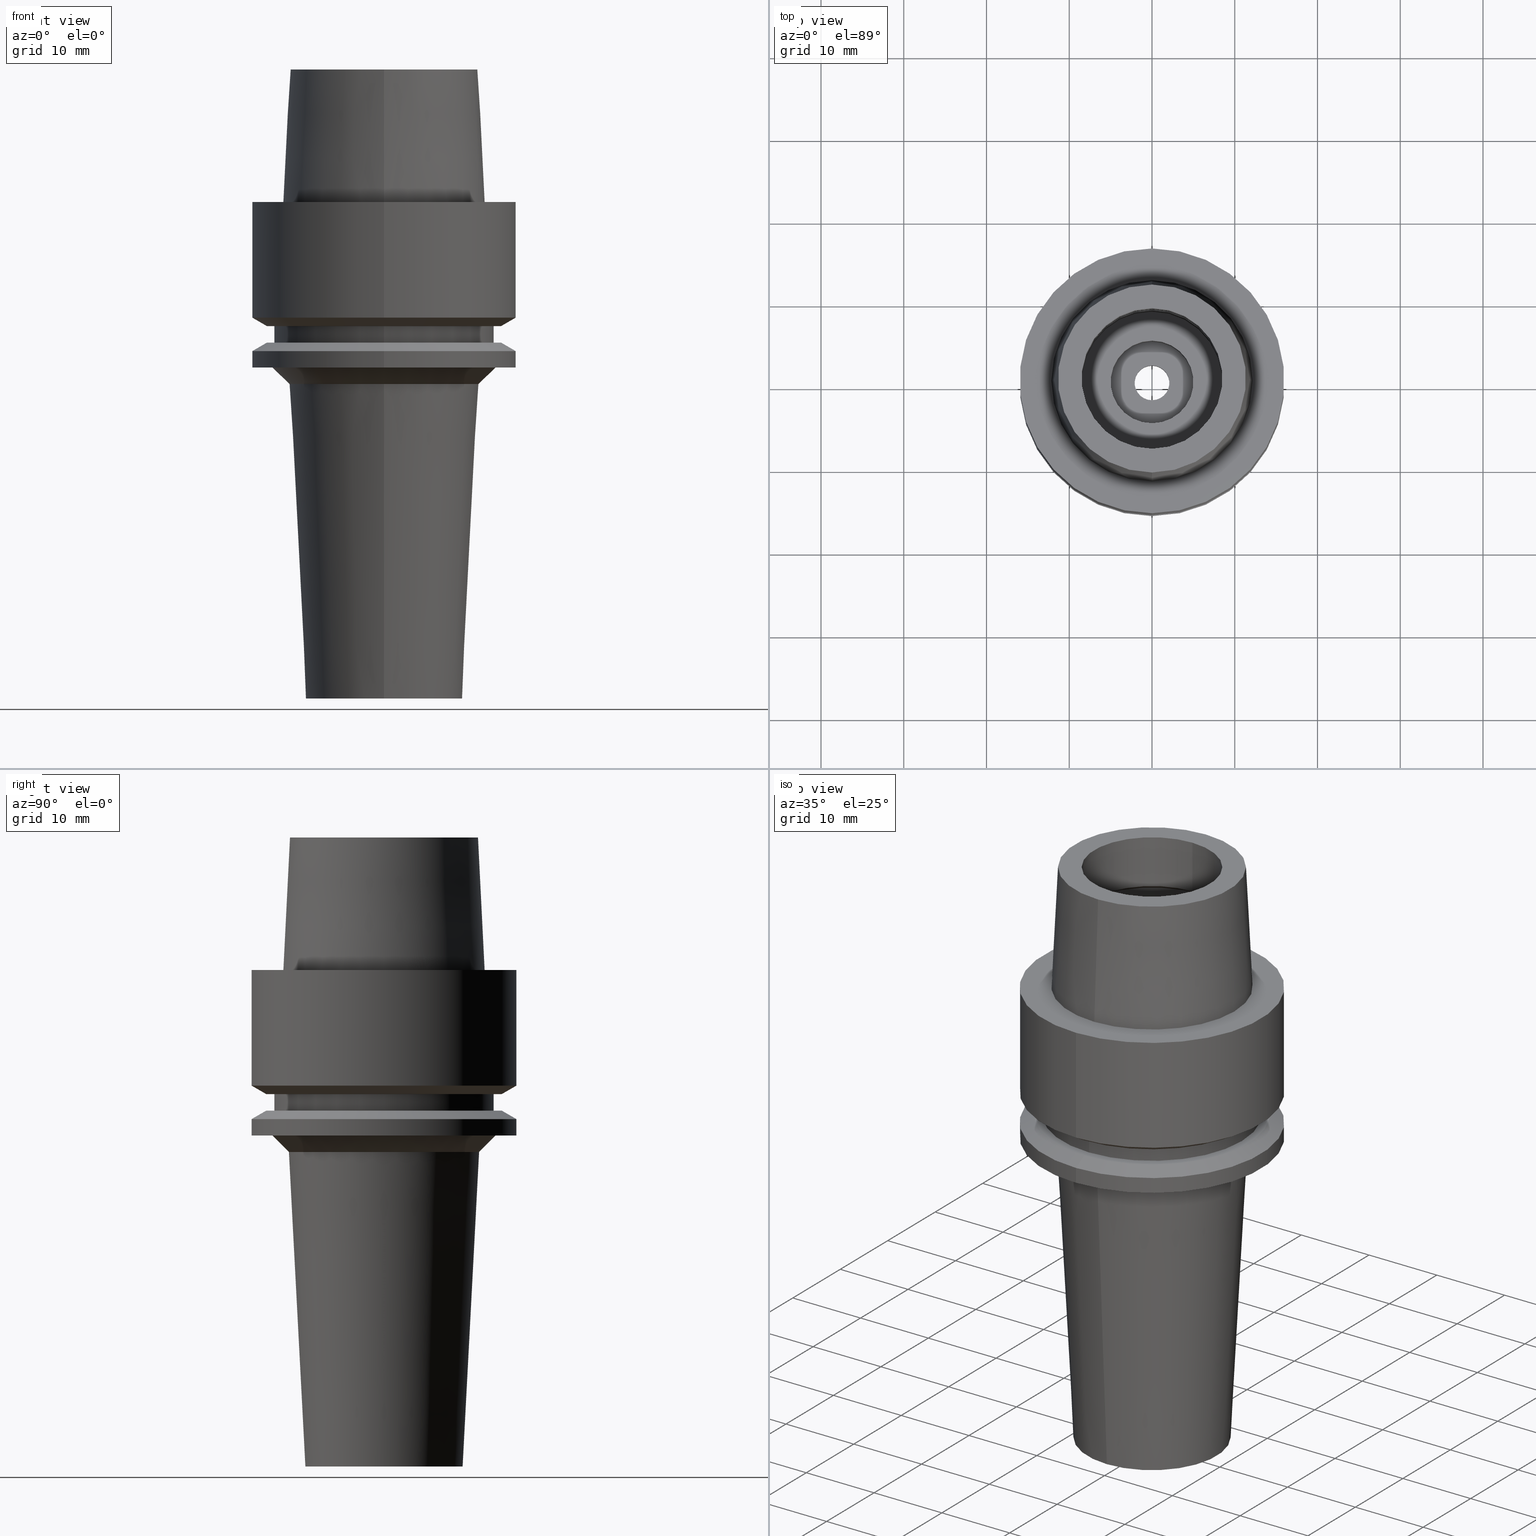
[diagram: canonical four-view strip — front | top / right | iso, engineering-drawing reading convention]
A machine part, canonical four-view strip (front | top / right | iso — engineering-drawing reading convention). The complete STEP part file that produces these views, byte-faithful:
ISO-10303-21;
HEADER;
FILE_DESCRIPTION((''),'2;1');
FILE_NAME('HSK-E32-SRC12S-60','2018-03-05T',('ykawabe'),(''),
'CREO PARAMETRIC BY PTC INC, 2016380','CREO PARAMETRIC BY PTC INC, 2016380','');
FILE_SCHEMA(('AUTOMOTIVE_DESIGN { 1 0 10303 214 1 1 1 1 }'));
ENDSEC;
DATA;
#17=DIRECTION('',(0.E0,4.993752584493E-2,-9.987523434328E-1));
#18=VECTOR('',#17,1.601998744254E1);
#19=CARTESIAN_POINT('',(0.E0,1.136000117044E1,1.6E1));
#20=LINE('',#19,#18);
#21=DRAUGHTING_PRE_DEFINED_CURVE_FONT('continuous');
#22=CURVE_STYLE('',#21,POSITIVE_LENGTH_MEASURE(2.E-2),#4);
#23=PRESENTATION_STYLE_ASSIGNMENT((#22));
#24=STYLED_ITEM('',(#23),#20);
#25=DIRECTION('',(0.E0,-4.993752584493E-2,-9.987523434328E-1));
#26=VECTOR('',#25,1.601998744254E1);
#27=CARTESIAN_POINT('',(0.E0,-1.136000117044E1,1.6E1));
#28=LINE('',#27,#26);
#29=CURVE_STYLE('',#21,POSITIVE_LENGTH_MEASURE(2.E-2),#4);
#30=PRESENTATION_STYLE_ASSIGNMENT((#29));
#31=STYLED_ITEM('',(#30),#28);
#32=CARTESIAN_POINT('',(0.E0,1.322618543079E-14,1.6E1));
#33=DIRECTION('',(0.E0,0.E0,-1.E0));
#34=DIRECTION('',(0.E0,-1.E0,0.E0));
#35=AXIS2_PLACEMENT_3D('',#32,#33,#34);
#37=CURVE_STYLE('',#21,POSITIVE_LENGTH_MEASURE(2.E-2),#4);
#38=PRESENTATION_STYLE_ASSIGNMENT((#37));
#39=STYLED_ITEM('',(#38),#36);
#40=CARTESIAN_POINT('',(0.E0,1.322618543079E-14,1.6E1));
#41=DIRECTION('',(0.E0,0.E0,-1.E0));
#42=DIRECTION('',(0.E0,1.E0,0.E0));
#43=AXIS2_PLACEMENT_3D('',#40,#41,#42);
#45=CURVE_STYLE('',#21,POSITIVE_LENGTH_MEASURE(2.E-2),#4);
#46=PRESENTATION_STYLE_ASSIGNMENT((#45));
#47=STYLED_ITEM('',(#46),#44);
#48=CARTESIAN_POINT('',(0.E0,1.467126865379E-14,1.6E1));
#49=DIRECTION('',(0.E0,0.E0,1.E0));
#50=DIRECTION('',(0.E0,-1.E0,0.E0));
#51=AXIS2_PLACEMENT_3D('',#48,#49,#50);
#53=CURVE_STYLE('',#21,POSITIVE_LENGTH_MEASURE(2.E-2),#4);
#54=PRESENTATION_STYLE_ASSIGNMENT((#53));
#55=STYLED_ITEM('',(#54),#52);
#56=CARTESIAN_POINT('',(0.E0,1.467126865379E-14,1.6E1));
#57=DIRECTION('',(0.E0,0.E0,1.E0));
#58=DIRECTION('',(0.E0,1.E0,0.E0));
#59=AXIS2_PLACEMENT_3D('',#56,#57,#58);
#61=CURVE_STYLE('',#21,POSITIVE_LENGTH_MEASURE(2.E-2),#4);
#62=PRESENTATION_STYLE_ASSIGNMENT((#61));
#63=STYLED_ITEM('',(#62),#60);
#64=DIRECTION('',(0.E0,0.E0,1.E0));
#65=VECTOR('',#64,6.502649730810E0);
#66=CARTESIAN_POINT('',(0.E0,8.5E0,9.497350269190E0));
#67=LINE('',#66,#65);
#68=CURVE_STYLE('',#21,POSITIVE_LENGTH_MEASURE(2.E-2),#4);
#69=PRESENTATION_STYLE_ASSIGNMENT((#68));
#70=STYLED_ITEM('',(#69),#67);
#71=DIRECTION('',(0.E0,0.E0,1.E0));
#72=VECTOR('',#71,6.502649730810E0);
#73=CARTESIAN_POINT('',(0.E0,-8.5E0,9.497350269190E0));
#74=LINE('',#73,#72);
#75=CURVE_STYLE('',#21,POSITIVE_LENGTH_MEASURE(2.E-2),#4);
#76=PRESENTATION_STYLE_ASSIGNMENT((#75));
#77=STYLED_ITEM('',(#76),#74);
#78=CARTESIAN_POINT('',(0.E0,1.334769106330E-14,8.486987298108E0));
#79=DIRECTION('',(0.E0,0.E0,1.E0));
#80=DIRECTION('',(0.E0,1.E0,0.E0));
#81=AXIS2_PLACEMENT_3D('',#78,#79,#80);
#83=CURVE_STYLE('',#21,POSITIVE_LENGTH_MEASURE(2.E-2),#4);
#84=PRESENTATION_STYLE_ASSIGNMENT((#83));
#85=STYLED_ITEM('',(#84),#82);
#86=DIRECTION('',(0.E0,8.660254037844E-1,5.E-1));
#87=VECTOR('',#86,2.020725942164E0);
#88=CARTESIAN_POINT('',(0.E0,-1.025E1,8.486987298108E0));
#89=LINE('',#88,#87);
#90=CURVE_STYLE('',#21,POSITIVE_LENGTH_MEASURE(2.E-2),#4);
#91=PRESENTATION_STYLE_ASSIGNMENT((#90));
#92=STYLED_ITEM('',(#91),#89);
#93=CARTESIAN_POINT('',(0.E0,1.334769106330E-14,9.497350269190E0));
#94=DIRECTION('',(0.E0,0.E0,-1.E0));
#95=DIRECTION('',(0.E0,-1.E0,0.E0));
#96=AXIS2_PLACEMENT_3D('',#93,#94,#95);
#98=CURVE_STYLE('',#21,POSITIVE_LENGTH_MEASURE(2.E-2),#4);
#99=PRESENTATION_STYLE_ASSIGNMENT((#98));
#100=STYLED_ITEM('',(#99),#97);
#101=DIRECTION('',(0.E0,-8.660254037844E-1,5.E-1));
#102=VECTOR('',#101,2.020725942164E0);
#103=CARTESIAN_POINT('',(0.E0,1.025E1,8.486987298108E0));
#104=LINE('',#103,#102);
#105=CURVE_STYLE('',#21,POSITIVE_LENGTH_MEASURE(2.E-2),#4);
#106=PRESENTATION_STYLE_ASSIGNMENT((#105));
#107=STYLED_ITEM('',(#106),#104);
#108=CARTESIAN_POINT('',(0.E0,1.334769106330E-14,9.497350269190E0));
#109=DIRECTION('',(0.E0,0.E0,-1.E0));
#110=DIRECTION('',(0.E0,1.E0,0.E0));
#111=AXIS2_PLACEMENT_3D('',#108,#109,#110);
#113=CURVE_STYLE('',#21,POSITIVE_LENGTH_MEASURE(2.E-2),#4);
#114=PRESENTATION_STYLE_ASSIGNMENT((#113));
#115=STYLED_ITEM('',(#114),#112);
#116=CARTESIAN_POINT('',(0.E0,1.334769106330E-14,8.486987298108E0));
#117=DIRECTION('',(0.E0,0.E0,1.E0));
#118=DIRECTION('',(0.E0,-1.E0,0.E0));
#119=AXIS2_PLACEMENT_3D('',#116,#117,#118);
#121=CURVE_STYLE('',#21,POSITIVE_LENGTH_MEASURE(2.E-2),#4);
#122=PRESENTATION_STYLE_ASSIGNMENT((#121));
#123=STYLED_ITEM('',(#122),#120);
#124=DIRECTION('',(0.E0,0.E0,1.E0));
#125=VECTOR('',#124,5.129987298108E0);
#126=CARTESIAN_POINT('',(0.E0,1.025E1,3.357E0));
#127=LINE('',#126,#125);
#128=CURVE_STYLE('',#21,POSITIVE_LENGTH_MEASURE(2.E-2),#4);
#129=PRESENTATION_STYLE_ASSIGNMENT((#128));
#130=STYLED_ITEM('',(#129),#127);
#131=DIRECTION('',(0.E0,0.E0,1.E0));
#132=VECTOR('',#131,5.129987298108E0);
#133=CARTESIAN_POINT('',(0.E0,-1.025E1,3.357E0));
#134=LINE('',#133,#132);
#135=CURVE_STYLE('',#21,POSITIVE_LENGTH_MEASURE(2.E-2),#4);
#136=PRESENTATION_STYLE_ASSIGNMENT((#135));
#137=STYLED_ITEM('',(#136),#134);
#138=CARTESIAN_POINT('',(0.E0,1.265758192195E-14,4.981086116927E-2));
#139=DIRECTION('',(0.E0,0.E0,1.E0));
#140=DIRECTION('',(0.E0,1.E0,0.E0));
#141=AXIS2_PLACEMENT_3D('',#138,#139,#140);
#143=CURVE_STYLE('',#21,POSITIVE_LENGTH_MEASURE(2.E-2),#4);
#144=PRESENTATION_STYLE_ASSIGNMENT((#143));
#145=STYLED_ITEM('',(#144),#142);
#146=CARTESIAN_POINT('',(0.E0,-6.25E0,3.357E0));
#147=DIRECTION('',(-1.E0,0.E0,0.E0));
#148=DIRECTION('',(0.E0,-5.625E-1,-8.267972847077E-1));
#149=AXIS2_PLACEMENT_3D('',#146,#147,#148);
#151=CURVE_STYLE('',#21,POSITIVE_LENGTH_MEASURE(2.E-2),#4);
#152=PRESENTATION_STYLE_ASSIGNMENT((#151));
#153=STYLED_ITEM('',(#152),#150);
#154=CARTESIAN_POINT('',(0.E0,1.265758192195E-14,3.357E0));
#155=DIRECTION('',(0.E0,0.E0,-1.E0));
#156=DIRECTION('',(0.E0,-1.E0,0.E0));
#157=AXIS2_PLACEMENT_3D('',#154,#155,#156);
#159=CURVE_STYLE('',#21,POSITIVE_LENGTH_MEASURE(2.E-2),#4);
#160=PRESENTATION_STYLE_ASSIGNMENT((#159));
#161=STYLED_ITEM('',(#160),#158);
#162=CARTESIAN_POINT('',(0.E0,6.25E0,3.357E0));
#163=DIRECTION('',(1.E0,0.E0,0.E0));
#164=DIRECTION('',(0.E0,5.625E-1,-8.267972847077E-1));
#165=AXIS2_PLACEMENT_3D('',#162,#163,#164);
#167=CURVE_STYLE('',#21,POSITIVE_LENGTH_MEASURE(2.E-2),#4);
#168=PRESENTATION_STYLE_ASSIGNMENT((#167));
#169=STYLED_ITEM('',(#168),#166);
#170=CARTESIAN_POINT('',(0.E0,1.265758192195E-14,3.357E0));
#171=DIRECTION('',(0.E0,0.E0,-1.E0));
#172=DIRECTION('',(0.E0,1.E0,0.E0));
#173=AXIS2_PLACEMENT_3D('',#170,#171,#172);
#175=CURVE_STYLE('',#21,POSITIVE_LENGTH_MEASURE(2.E-2),#4);
#176=PRESENTATION_STYLE_ASSIGNMENT((#175));
#177=STYLED_ITEM('',(#176),#174);
#178=CARTESIAN_POINT('',(0.E0,1.265758192195E-14,4.981086116927E-2));
#179=DIRECTION('',(0.E0,0.E0,1.E0));
#180=DIRECTION('',(0.E0,-1.E0,0.E0));
#181=AXIS2_PLACEMENT_3D('',#178,#179,#180);
#183=CURVE_STYLE('',#21,POSITIVE_LENGTH_MEASURE(2.E-2),#4);
#184=PRESENTATION_STYLE_ASSIGNMENT((#183));
#185=STYLED_ITEM('',(#184),#182);
#186=DIRECTION('',(0.E0,1.426481532503E-13,1.E0));
#187=VECTOR('',#186,4.981086116925E-2);
#188=CARTESIAN_POINT('',(0.E0,8.5E0,3.552713678801E-14));
#189=LINE('',#188,#187);
#190=CURVE_STYLE('',#21,POSITIVE_LENGTH_MEASURE(2.E-2),#4);
#191=PRESENTATION_STYLE_ASSIGNMENT((#190));
#192=STYLED_ITEM('',(#191),#189);
#193=CARTESIAN_POINT('',(0.E0,1.467126865379E-14,3.907985046681E-14));
#194=DIRECTION('',(0.E0,0.E0,1.E0));
#195=DIRECTION('',(0.E0,-1.E0,0.E0));
#196=AXIS2_PLACEMENT_3D('',#193,#194,#195);
#198=CURVE_STYLE('',#21,POSITIVE_LENGTH_MEASURE(2.E-2),#4);
#199=PRESENTATION_STYLE_ASSIGNMENT((#198));
#200=STYLED_ITEM('',(#199),#197);
#201=DIRECTION('',(0.E0,-1.426481532503E-13,1.E0));
#202=VECTOR('',#201,4.981086116925E-2);
#203=CARTESIAN_POINT('',(0.E0,-8.5E0,3.552713678801E-14));
#204=LINE('',#203,#202);
#205=CURVE_STYLE('',#21,POSITIVE_LENGTH_MEASURE(2.E-2),#4);
#206=PRESENTATION_STYLE_ASSIGNMENT((#205));
#207=STYLED_ITEM('',(#206),#204);
#208=DIRECTION('',(0.E0,0.E0,1.E0));
#209=VECTOR('',#208,7.95E0);
#210=CARTESIAN_POINT('',(0.E0,-8.5E0,-7.95E0));
#211=LINE('',#210,#209);
#212=CURVE_STYLE('',#21,POSITIVE_LENGTH_MEASURE(2.E-2),#4);
#213=PRESENTATION_STYLE_ASSIGNMENT((#212));
#214=STYLED_ITEM('',(#213),#211);
#215=CARTESIAN_POINT('',(0.E0,1.467126865379E-14,3.907985046681E-14));
#216=DIRECTION('',(0.E0,0.E0,-1.E0));
#217=DIRECTION('',(0.E0,-1.E0,0.E0));
#218=AXIS2_PLACEMENT_3D('',#215,#216,#217);
#220=CURVE_STYLE('',#21,POSITIVE_LENGTH_MEASURE(2.E-2),#4);
#221=PRESENTATION_STYLE_ASSIGNMENT((#220));
#222=STYLED_ITEM('',(#221),#219);
#223=DIRECTION('',(0.E0,0.E0,1.E0));
#224=VECTOR('',#223,7.95E0);
#225=CARTESIAN_POINT('',(0.E0,8.5E0,-7.95E0));
#226=LINE('',#225,#224);
#227=CURVE_STYLE('',#21,POSITIVE_LENGTH_MEASURE(2.E-2),#4);
#228=PRESENTATION_STYLE_ASSIGNMENT((#227));
#229=STYLED_ITEM('',(#228),#226);
#230=CARTESIAN_POINT('',(0.E0,1.467126865379E-14,-7.95E0));
#231=DIRECTION('',(0.E0,0.E0,-1.E0));
#232=DIRECTION('',(0.E0,-1.E0,0.E0));
#233=AXIS2_PLACEMENT_3D('',#230,#231,#232);
#235=CURVE_STYLE('',#21,POSITIVE_LENGTH_MEASURE(2.E-2),#4);
#236=PRESENTATION_STYLE_ASSIGNMENT((#235));
#237=STYLED_ITEM('',(#236),#234);
#238=CARTESIAN_POINT('',(0.E0,1.467126865379E-14,-7.95E0));
#239=DIRECTION('',(0.E0,0.E0,-1.E0));
#240=DIRECTION('',(0.E0,1.E0,0.E0));
#241=AXIS2_PLACEMENT_3D('',#238,#239,#240);
#243=CURVE_STYLE('',#21,POSITIVE_LENGTH_MEASURE(2.E-2),#4);
#244=PRESENTATION_STYLE_ASSIGNMENT((#243));
#245=STYLED_ITEM('',(#244),#242);
#246=CARTESIAN_POINT('',(0.E0,1.467126865379E-14,-7.95E0));
#247=DIRECTION('',(0.E0,0.E0,1.E0));
#248=DIRECTION('',(0.E0,-1.E0,0.E0));
#249=AXIS2_PLACEMENT_3D('',#246,#247,#248);
#251=CURVE_STYLE('',#21,POSITIVE_LENGTH_MEASURE(2.E-2),#4);
#252=PRESENTATION_STYLE_ASSIGNMENT((#251));
#253=STYLED_ITEM('',(#252),#250);
#254=CARTESIAN_POINT('',(0.E0,1.467126865379E-14,-7.95E0));
#255=DIRECTION('',(0.E0,0.E0,1.E0));
#256=DIRECTION('',(0.E0,1.E0,0.E0));
#257=AXIS2_PLACEMENT_3D('',#254,#255,#256);
#259=CURVE_STYLE('',#21,POSITIVE_LENGTH_MEASURE(2.E-2),#4);
#260=PRESENTATION_STYLE_ASSIGNMENT((#259));
#261=STYLED_ITEM('',(#260),#258);
#262=DIRECTION('',(0.E0,0.E0,1.E0));
#263=VECTOR('',#262,6.E0);
#264=CARTESIAN_POINT('',(0.E0,5.E0,-1.395E1));
#265=LINE('',#264,#263);
#266=CURVE_STYLE('',#21,POSITIVE_LENGTH_MEASURE(2.E-2),#4);
#267=PRESENTATION_STYLE_ASSIGNMENT((#266));
#268=STYLED_ITEM('',(#267),#265);
#269=DIRECTION('',(0.E0,0.E0,1.E0));
#270=VECTOR('',#269,6.E0);
#271=CARTESIAN_POINT('',(0.E0,-5.E0,-1.395E1));
#272=LINE('',#271,#270);
#273=CURVE_STYLE('',#21,POSITIVE_LENGTH_MEASURE(2.E-2),#4);
#274=PRESENTATION_STYLE_ASSIGNMENT((#273));
#275=STYLED_ITEM('',(#274),#272);
#276=CARTESIAN_POINT('',(0.E0,1.467126865379E-14,-1.395E1));
#277=DIRECTION('',(0.E0,0.E0,-1.E0));
#278=DIRECTION('',(0.E0,-1.E0,0.E0));
#279=AXIS2_PLACEMENT_3D('',#276,#277,#278);
#281=CURVE_STYLE('',#21,POSITIVE_LENGTH_MEASURE(2.E-2),#4);
#282=PRESENTATION_STYLE_ASSIGNMENT((#281));
#283=STYLED_ITEM('',(#282),#280);
#284=CARTESIAN_POINT('',(0.E0,1.467126865379E-14,-1.395E1));
#285=DIRECTION('',(0.E0,0.E0,-1.E0));
#286=DIRECTION('',(0.E0,1.E0,0.E0));
#287=AXIS2_PLACEMENT_3D('',#284,#285,#286);
#289=CURVE_STYLE('',#21,POSITIVE_LENGTH_MEASURE(2.E-2),#4);
#290=PRESENTATION_STYLE_ASSIGNMENT((#289));
#291=STYLED_ITEM('',(#290),#288);
#292=CARTESIAN_POINT('',(0.E0,1.467126865379E-14,-1.395E1));
#293=DIRECTION('',(0.E0,0.E0,1.E0));
#294=DIRECTION('',(0.E0,-1.E0,0.E0));
#295=AXIS2_PLACEMENT_3D('',#292,#293,#294);
#297=CURVE_STYLE('',#21,POSITIVE_LENGTH_MEASURE(2.E-2),#4);
#298=PRESENTATION_STYLE_ASSIGNMENT((#297));
#299=STYLED_ITEM('',(#298),#296);
#300=CARTESIAN_POINT('',(0.E0,1.467126865379E-14,-1.395E1));
#301=DIRECTION('',(0.E0,0.E0,1.E0));
#302=DIRECTION('',(0.E0,1.E0,0.E0));
#303=AXIS2_PLACEMENT_3D('',#300,#301,#302);
#305=CURVE_STYLE('',#21,POSITIVE_LENGTH_MEASURE(2.E-2),#4);
#306=PRESENTATION_STYLE_ASSIGNMENT((#305));
#307=STYLED_ITEM('',(#306),#304);
#308=DIRECTION('',(0.E0,0.E0,1.E0));
#309=VECTOR('',#308,3.05E0);
#310=CARTESIAN_POINT('',(0.E0,2.1E0,-1.7E1));
#311=LINE('',#310,#309);
#312=CURVE_STYLE('',#21,POSITIVE_LENGTH_MEASURE(2.E-2),#4);
#313=PRESENTATION_STYLE_ASSIGNMENT((#312));
#314=STYLED_ITEM('',(#313),#311);
#315=DIRECTION('',(0.E0,0.E0,1.E0));
#316=VECTOR('',#315,3.05E0);
#317=CARTESIAN_POINT('',(0.E0,-2.1E0,-1.7E1));
#318=LINE('',#317,#316);
#319=CURVE_STYLE('',#21,POSITIVE_LENGTH_MEASURE(2.E-2),#4);
#320=PRESENTATION_STYLE_ASSIGNMENT((#319));
#321=STYLED_ITEM('',(#320),#318);
#322=CARTESIAN_POINT('',(0.E0,1.467126865379E-14,-1.7E1));
#323=DIRECTION('',(0.E0,0.E0,1.E0));
#324=DIRECTION('',(0.E0,-1.E0,0.E0));
#325=AXIS2_PLACEMENT_3D('',#322,#323,#324);
#327=CURVE_STYLE('',#21,POSITIVE_LENGTH_MEASURE(2.E-2),#4);
#328=PRESENTATION_STYLE_ASSIGNMENT((#327));
#329=STYLED_ITEM('',(#328),#326);
#330=CARTESIAN_POINT('',(0.E0,1.467126865379E-14,-1.7E1));
#331=DIRECTION('',(0.E0,0.E0,1.E0));
#332=DIRECTION('',(0.E0,1.E0,0.E0));
#333=AXIS2_PLACEMENT_3D('',#330,#331,#332);
#335=CURVE_STYLE('',#21,POSITIVE_LENGTH_MEASURE(2.E-2),#4);
#336=PRESENTATION_STYLE_ASSIGNMENT((#335));
#337=STYLED_ITEM('',(#336),#334);
#338=CARTESIAN_POINT('',(0.E0,1.467126865379E-14,-1.7E1));
#339=DIRECTION('',(0.E0,0.E0,-1.E0));
#340=DIRECTION('',(0.E0,-1.E0,0.E0));
#341=AXIS2_PLACEMENT_3D('',#338,#339,#340);
#343=CURVE_STYLE('',#21,POSITIVE_LENGTH_MEASURE(2.E-2),#4);
#344=PRESENTATION_STYLE_ASSIGNMENT((#343));
#345=STYLED_ITEM('',(#344),#342);
#346=CARTESIAN_POINT('',(0.E0,1.467126865379E-14,-1.7E1));
#347=DIRECTION('',(0.E0,0.E0,-1.E0));
#348=DIRECTION('',(0.E0,1.E0,0.E0));
#349=AXIS2_PLACEMENT_3D('',#346,#347,#348);
#351=CURVE_STYLE('',#21,POSITIVE_LENGTH_MEASURE(2.E-2),#4);
#352=PRESENTATION_STYLE_ASSIGNMENT((#351));
#353=STYLED_ITEM('',(#352),#350);
#354=DIRECTION('',(0.E0,0.E0,1.E0));
#355=VECTOR('',#354,7.2E0);
#356=CARTESIAN_POINT('',(0.E0,6.5E0,-2.42E1));
#357=LINE('',#356,#355);
#358=CURVE_STYLE('',#21,POSITIVE_LENGTH_MEASURE(2.E-2),#4);
#359=PRESENTATION_STYLE_ASSIGNMENT((#358));
#360=STYLED_ITEM('',(#359),#357);
#361=DIRECTION('',(0.E0,0.E0,1.E0));
#362=VECTOR('',#361,7.2E0);
#363=CARTESIAN_POINT('',(0.E0,-6.5E0,-2.42E1));
#364=LINE('',#363,#362);
#365=CURVE_STYLE('',#21,POSITIVE_LENGTH_MEASURE(2.E-2),#4);
#366=PRESENTATION_STYLE_ASSIGNMENT((#365));
#367=STYLED_ITEM('',(#366),#364);
#368=CARTESIAN_POINT('',(0.E0,1.467126865379E-14,-2.42E1));
#369=DIRECTION('',(0.E0,0.E0,-1.E0));
#370=DIRECTION('',(0.E0,-1.E0,0.E0));
#371=AXIS2_PLACEMENT_3D('',#368,#369,#370);
#373=CURVE_STYLE('',#21,POSITIVE_LENGTH_MEASURE(2.E-2),#4);
#374=PRESENTATION_STYLE_ASSIGNMENT((#373));
#375=STYLED_ITEM('',(#374),#372);
#376=CARTESIAN_POINT('',(0.E0,1.467126865379E-14,-2.42E1));
#377=DIRECTION('',(0.E0,0.E0,-1.E0));
#378=DIRECTION('',(0.E0,1.E0,0.E0));
#379=AXIS2_PLACEMENT_3D('',#376,#377,#378);
#381=CURVE_STYLE('',#21,POSITIVE_LENGTH_MEASURE(2.E-2),#4);
#382=PRESENTATION_STYLE_ASSIGNMENT((#381));
#383=STYLED_ITEM('',(#382),#380);
#384=CARTESIAN_POINT('',(0.E0,1.467126865379E-14,-2.42E1));
#385=DIRECTION('',(0.E0,0.E0,1.E0));
#386=DIRECTION('',(0.E0,-1.E0,0.E0));
#387=AXIS2_PLACEMENT_3D('',#384,#385,#386);
#389=CURVE_STYLE('',#21,POSITIVE_LENGTH_MEASURE(2.E-2),#4);
#390=PRESENTATION_STYLE_ASSIGNMENT((#389));
#391=STYLED_ITEM('',(#390),#388);
#392=CARTESIAN_POINT('',(0.E0,1.467126865379E-14,-2.42E1));
#393=DIRECTION('',(0.E0,0.E0,1.E0));
#394=DIRECTION('',(0.E0,1.E0,0.E0));
#395=AXIS2_PLACEMENT_3D('',#392,#393,#394);
#397=CURVE_STYLE('',#21,POSITIVE_LENGTH_MEASURE(2.E-2),#4);
#398=PRESENTATION_STYLE_ASSIGNMENT((#397));
#399=STYLED_ITEM('',(#398),#396);
#400=DIRECTION('',(0.E0,0.E0,1.E0));
#401=VECTOR('',#400,3.58E1);
#402=CARTESIAN_POINT('',(0.E0,6.E0,-6.E1));
#403=LINE('',#402,#401);
#404=CURVE_STYLE('',#21,POSITIVE_LENGTH_MEASURE(2.E-2),#4);
#405=PRESENTATION_STYLE_ASSIGNMENT((#404));
#406=STYLED_ITEM('',(#405),#403);
#407=DIRECTION('',(0.E0,0.E0,1.E0));
#408=VECTOR('',#407,3.58E1);
#409=CARTESIAN_POINT('',(0.E0,-6.E0,-6.E1));
#410=LINE('',#409,#408);
#411=CURVE_STYLE('',#21,POSITIVE_LENGTH_MEASURE(2.E-2),#4);
#412=PRESENTATION_STYLE_ASSIGNMENT((#411));
#413=STYLED_ITEM('',(#412),#410);
#414=CARTESIAN_POINT('',(0.E0,0.E0,-6.E1));
#415=DIRECTION('',(0.E0,0.E0,1.E0));
#416=DIRECTION('',(0.E0,-1.E0,0.E0));
#417=AXIS2_PLACEMENT_3D('',#414,#415,#416);
#419=CURVE_STYLE('',#21,POSITIVE_LENGTH_MEASURE(2.E-2),#4);
#420=PRESENTATION_STYLE_ASSIGNMENT((#419));
#421=STYLED_ITEM('',(#420),#418);
#422=CARTESIAN_POINT('',(0.E0,0.E0,-6.E1));
#423=DIRECTION('',(0.E0,0.E0,1.E0));
#424=DIRECTION('',(0.E0,1.E0,0.E0));
#425=AXIS2_PLACEMENT_3D('',#422,#423,#424);
#427=CURVE_STYLE('',#21,POSITIVE_LENGTH_MEASURE(2.E-2),#4);
#428=PRESENTATION_STYLE_ASSIGNMENT((#427));
#429=STYLED_ITEM('',(#428),#426);
#430=CARTESIAN_POINT('',(0.E0,1.467126865379E-14,-6.E1));
#431=DIRECTION('',(0.E0,0.E0,-1.E0));
#432=DIRECTION('',(0.E0,-1.E0,0.E0));
#433=AXIS2_PLACEMENT_3D('',#430,#431,#432);
#435=CURVE_STYLE('',#21,POSITIVE_LENGTH_MEASURE(2.E-2),#4);
#436=PRESENTATION_STYLE_ASSIGNMENT((#435));
#437=STYLED_ITEM('',(#436),#434);
#438=CARTESIAN_POINT('',(0.E0,1.467126865379E-14,-6.E1));
#439=DIRECTION('',(0.E0,0.E0,-1.E0));
#440=DIRECTION('',(0.E0,1.E0,0.E0));
#441=AXIS2_PLACEMENT_3D('',#438,#439,#440);
#443=CURVE_STYLE('',#21,POSITIVE_LENGTH_MEASURE(2.E-2),#4);
#444=PRESENTATION_STYLE_ASSIGNMENT((#443));
#445=STYLED_ITEM('',(#444),#442);
#446=DIRECTION('',(0.E0,-5.233595624299E-2,-9.986295347546E-1));
#447=VECTOR('',#446,3.805214914792E1);
#448=CARTESIAN_POINT('',(0.E0,1.149149561276E1,-2.2E1));
#449=LINE('',#448,#447);
#450=CURVE_STYLE('',#21,POSITIVE_LENGTH_MEASURE(2.E-2),#4);
#451=PRESENTATION_STYLE_ASSIGNMENT((#450));
#452=STYLED_ITEM('',(#451),#449);
#453=CARTESIAN_POINT('',(0.E0,0.E0,-2.2E1));
#454=DIRECTION('',(0.E0,0.E0,1.E0));
#455=DIRECTION('',(0.E0,-1.E0,0.E0));
#456=AXIS2_PLACEMENT_3D('',#453,#454,#455);
#458=CURVE_STYLE('',#21,POSITIVE_LENGTH_MEASURE(2.E-2),#4);
#459=PRESENTATION_STYLE_ASSIGNMENT((#458));
#460=STYLED_ITEM('',(#459),#457);
#461=DIRECTION('',(0.E0,5.233595624299E-2,-9.986295347546E-1));
#462=VECTOR('',#461,3.805214914792E1);
#463=CARTESIAN_POINT('',(0.E0,-1.149149561276E1,-2.2E1));
#464=LINE('',#463,#462);
#465=CURVE_STYLE('',#21,POSITIVE_LENGTH_MEASURE(2.E-2),#4);
#466=PRESENTATION_STYLE_ASSIGNMENT((#465));
#467=STYLED_ITEM('',(#466),#464);
#468=DIRECTION('',(0.E0,7.071067811867E-1,-7.071067811864E-1));
#469=VECTOR('',#468,2.828427124747E0);
#470=CARTESIAN_POINT('',(0.E0,-1.349149561276E1,-2.E1));
#471=LINE('',#470,#469);
#472=CURVE_STYLE('',#21,POSITIVE_LENGTH_MEASURE(2.E-2),#4);
#473=PRESENTATION_STYLE_ASSIGNMENT((#472));
#474=STYLED_ITEM('',(#473),#471);
#475=CARTESIAN_POINT('',(0.E0,0.E0,-2.2E1));
#476=DIRECTION('',(0.E0,0.E0,-1.E0));
#477=DIRECTION('',(0.E0,-1.E0,0.E0));
#478=AXIS2_PLACEMENT_3D('',#475,#476,#477);
#480=CURVE_STYLE('',#21,POSITIVE_LENGTH_MEASURE(2.E-2),#4);
#481=PRESENTATION_STYLE_ASSIGNMENT((#480));
#482=STYLED_ITEM('',(#481),#479);
#483=DIRECTION('',(0.E0,-7.071067811867E-1,-7.071067811864E-1));
#484=VECTOR('',#483,2.828427124747E0);
#485=CARTESIAN_POINT('',(0.E0,1.349149561276E1,-2.E1));
#486=LINE('',#485,#484);
#487=CURVE_STYLE('',#21,POSITIVE_LENGTH_MEASURE(2.E-2),#4);
#488=PRESENTATION_STYLE_ASSIGNMENT((#487));
#489=STYLED_ITEM('',(#488),#486);
#490=CARTESIAN_POINT('',(0.E0,1.467126865379E-14,-2.E1));
#491=DIRECTION('',(0.E0,0.E0,1.E0));
#492=DIRECTION('',(0.E0,-1.E0,0.E0));
#493=AXIS2_PLACEMENT_3D('',#490,#491,#492);
#495=CURVE_STYLE('',#21,POSITIVE_LENGTH_MEASURE(2.E-2),#4);
#496=PRESENTATION_STYLE_ASSIGNMENT((#495));
#497=STYLED_ITEM('',(#496),#494);
#498=CARTESIAN_POINT('',(0.E0,1.467126865379E-14,-2.E1));
#499=DIRECTION('',(0.E0,0.E0,1.E0));
#500=DIRECTION('',(0.E0,1.E0,0.E0));
#501=AXIS2_PLACEMENT_3D('',#498,#499,#500);
#503=CURVE_STYLE('',#21,POSITIVE_LENGTH_MEASURE(2.E-2),#4);
#504=PRESENTATION_STYLE_ASSIGNMENT((#503));
#505=STYLED_ITEM('',(#504),#502);
#506=CARTESIAN_POINT('',(0.E0,0.E0,-2.E1));
#507=DIRECTION('',(0.E0,0.E0,-1.E0));
#508=DIRECTION('',(0.E0,-1.E0,0.E0));
#509=AXIS2_PLACEMENT_3D('',#506,#507,#508);
#511=CURVE_STYLE('',#21,POSITIVE_LENGTH_MEASURE(2.E-2),#4);
#512=PRESENTATION_STYLE_ASSIGNMENT((#511));
#513=STYLED_ITEM('',(#512),#510);
#514=CARTESIAN_POINT('',(0.E0,0.E0,-2.E1));
#515=DIRECTION('',(0.E0,0.E0,-1.E0));
#516=DIRECTION('',(0.E0,1.E0,0.E0));
#517=AXIS2_PLACEMENT_3D('',#514,#515,#516);
#519=CURVE_STYLE('',#21,POSITIVE_LENGTH_MEASURE(2.E-2),#4);
#520=PRESENTATION_STYLE_ASSIGNMENT((#519));
#521=STYLED_ITEM('',(#520),#518);
#522=DIRECTION('',(0.E0,4.765613321642E-13,-1.E0));
#523=VECTOR('',#522,1.979274057838E0);
#524=CARTESIAN_POINT('',(0.E0,1.6E1,-1.802072594216E1));
#525=LINE('',#524,#523);
#526=CURVE_STYLE('',#21,POSITIVE_LENGTH_MEASURE(2.E-2),#4);
#527=PRESENTATION_STYLE_ASSIGNMENT((#526));
#528=STYLED_ITEM('',(#527),#525);
#529=DIRECTION('',(0.E0,-4.792537690691E-13,-1.E0));
#530=VECTOR('',#529,1.979274057838E0);
#531=CARTESIAN_POINT('',(0.E0,-1.6E1,-1.802072594216E1));
#532=LINE('',#531,#530);
#533=CURVE_STYLE('',#21,POSITIVE_LENGTH_MEASURE(2.E-2),#4);
#534=PRESENTATION_STYLE_ASSIGNMENT((#533));
#535=STYLED_ITEM('',(#534),#532);
#536=DIRECTION('',(0.E0,-8.660254037848E-1,-4.999999999994E-1));
#537=VECTOR('',#536,2.041451884325E0);
#538=CARTESIAN_POINT('',(0.E0,-1.423205080757E1,-1.7E1));
#539=LINE('',#538,#537);
#540=CURVE_STYLE('',#21,POSITIVE_LENGTH_MEASURE(2.E-2),#4);
#541=PRESENTATION_STYLE_ASSIGNMENT((#540));
#542=STYLED_ITEM('',(#541),#539);
#543=CARTESIAN_POINT('',(0.E0,1.010206699503E-14,-1.802072594216E1));
#544=DIRECTION('',(0.E0,0.E0,-1.E0));
#545=DIRECTION('',(0.E0,-1.E0,0.E0));
#546=AXIS2_PLACEMENT_3D('',#543,#544,#545);
#548=CURVE_STYLE('',#21,POSITIVE_LENGTH_MEASURE(2.E-2),#4);
#549=PRESENTATION_STYLE_ASSIGNMENT((#548));
#550=STYLED_ITEM('',(#549),#547);
#551=DIRECTION('',(0.E0,8.660254037848E-1,-4.999999999994E-1));
#552=VECTOR('',#551,2.041451884325E0);
#553=CARTESIAN_POINT('',(0.E0,1.423205080757E1,-1.7E1));
#554=LINE('',#553,#552);
#555=CURVE_STYLE('',#21,POSITIVE_LENGTH_MEASURE(2.E-2),#4);
#556=PRESENTATION_STYLE_ASSIGNMENT((#555));
#557=STYLED_ITEM('',(#556),#554);
#558=CARTESIAN_POINT('',(0.E0,1.010206699503E-14,-1.802072594216E1));
#559=DIRECTION('',(0.E0,0.E0,-1.E0));
#560=DIRECTION('',(0.E0,1.E0,0.E0));
#561=AXIS2_PLACEMENT_3D('',#558,#559,#560);
#563=CURVE_STYLE('',#21,POSITIVE_LENGTH_MEASURE(2.E-2),#4);
#564=PRESENTATION_STYLE_ASSIGNMENT((#563));
#565=STYLED_ITEM('',(#564),#562);
#566=CARTESIAN_POINT('',(0.E0,1.010206699503E-14,-1.7E1));
#567=DIRECTION('',(0.E0,0.E0,-1.E0));
#568=DIRECTION('',(0.E0,-1.E0,0.E0));
#569=AXIS2_PLACEMENT_3D('',#566,#567,#568);
#571=CURVE_STYLE('',#21,POSITIVE_LENGTH_MEASURE(2.E-2),#4);
#572=PRESENTATION_STYLE_ASSIGNMENT((#571));
#573=STYLED_ITEM('',(#572),#570);
#574=CARTESIAN_POINT('',(0.E0,1.010206699503E-14,-1.7E1));
#575=DIRECTION('',(0.E0,0.E0,-1.E0));
#576=DIRECTION('',(0.E0,1.E0,0.E0));
#577=AXIS2_PLACEMENT_3D('',#574,#575,#576);
#579=CURVE_STYLE('',#21,POSITIVE_LENGTH_MEASURE(2.E-2),#4);
#580=PRESENTATION_STYLE_ASSIGNMENT((#579));
#581=STYLED_ITEM('',(#580),#578);
#582=CARTESIAN_POINT('',(0.E0,1.467126865379E-14,-1.7E1));
#583=DIRECTION('',(0.E0,0.E0,1.E0));
#584=DIRECTION('',(0.E0,-1.E0,0.E0));
#585=AXIS2_PLACEMENT_3D('',#582,#583,#584);
#587=CURVE_STYLE('',#21,POSITIVE_LENGTH_MEASURE(2.E-2),#4);
#588=PRESENTATION_STYLE_ASSIGNMENT((#587));
#589=STYLED_ITEM('',(#588),#586);
#590=CARTESIAN_POINT('',(0.E0,1.467126865379E-14,-1.7E1));
#591=DIRECTION('',(0.E0,0.E0,1.E0));
#592=DIRECTION('',(0.E0,1.E0,0.E0));
#593=AXIS2_PLACEMENT_3D('',#590,#591,#592);
#595=CURVE_STYLE('',#21,POSITIVE_LENGTH_MEASURE(2.E-2),#4);
#596=PRESENTATION_STYLE_ASSIGNMENT((#595));
#597=STYLED_ITEM('',(#596),#594);
#598=DIRECTION('',(0.E0,0.E0,-1.E0));
#599=VECTOR('',#598,2.E0);
#600=CARTESIAN_POINT('',(0.E0,1.325E1,-1.5E1));
#601=LINE('',#600,#599);
#602=CURVE_STYLE('',#21,POSITIVE_LENGTH_MEASURE(2.E-2),#4);
#603=PRESENTATION_STYLE_ASSIGNMENT((#602));
#604=STYLED_ITEM('',(#603),#601);
#605=DIRECTION('',(0.E0,0.E0,-1.E0));
#606=VECTOR('',#605,2.E0);
#607=CARTESIAN_POINT('',(0.E0,-1.325E1,-1.5E1));
#608=LINE('',#607,#606);
#609=CURVE_STYLE('',#21,POSITIVE_LENGTH_MEASURE(2.E-2),#4);
#610=PRESENTATION_STYLE_ASSIGNMENT((#609));
#611=STYLED_ITEM('',(#610),#608);
#612=CARTESIAN_POINT('',(0.E0,1.047199923065E-14,-1.5E1));
#613=DIRECTION('',(0.E0,0.E0,1.E0));
#614=DIRECTION('',(0.E0,-1.E0,0.E0));
#615=AXIS2_PLACEMENT_3D('',#612,#613,#614);
#617=CURVE_STYLE('',#21,POSITIVE_LENGTH_MEASURE(2.E-2),#4);
#618=PRESENTATION_STYLE_ASSIGNMENT((#617));
#619=STYLED_ITEM('',(#618),#616);
#620=CARTESIAN_POINT('',(0.E0,1.047199923065E-14,-1.5E1));
#621=DIRECTION('',(0.E0,0.E0,1.E0));
#622=DIRECTION('',(0.E0,1.E0,0.E0));
#623=AXIS2_PLACEMENT_3D('',#620,#621,#622);
#625=CURVE_STYLE('',#21,POSITIVE_LENGTH_MEASURE(2.E-2),#4);
#626=PRESENTATION_STYLE_ASSIGNMENT((#625));
#627=STYLED_ITEM('',(#626),#624);
#628=CARTESIAN_POINT('',(0.E0,1.467126865379E-14,-1.5E1));
#629=DIRECTION('',(0.E0,0.E0,-1.E0));
#630=DIRECTION('',(0.E0,-1.E0,0.E0));
#631=AXIS2_PLACEMENT_3D('',#628,#629,#630);
#633=CURVE_STYLE('',#21,POSITIVE_LENGTH_MEASURE(2.E-2),#4);
#634=PRESENTATION_STYLE_ASSIGNMENT((#633));
#635=STYLED_ITEM('',(#634),#632);
#636=CARTESIAN_POINT('',(0.E0,1.467126865379E-14,-1.5E1));
#637=DIRECTION('',(0.E0,0.E0,-1.E0));
#638=DIRECTION('',(0.E0,1.E0,0.E0));
#639=AXIS2_PLACEMENT_3D('',#636,#637,#638);
#641=CURVE_STYLE('',#21,POSITIVE_LENGTH_MEASURE(2.E-2),#4);
#642=PRESENTATION_STYLE_ASSIGNMENT((#641));
#643=STYLED_ITEM('',(#642),#640);
#644=DIRECTION('',(0.E0,-8.660254037848E-1,-4.999999999994E-1));
#645=VECTOR('',#644,2.041451884325E0);
#646=CARTESIAN_POINT('',(0.E0,1.6E1,-1.397927405784E1));
#647=LINE('',#646,#645);
#648=CURVE_STYLE('',#21,POSITIVE_LENGTH_MEASURE(2.E-2),#4);
#649=PRESENTATION_STYLE_ASSIGNMENT((#648));
#650=STYLED_ITEM('',(#649),#647);
#651=CARTESIAN_POINT('',(0.E0,1.047199923065E-14,-1.397927405784E1));
#652=DIRECTION('',(0.E0,0.E0,1.E0));
#653=DIRECTION('',(0.E0,-1.E0,0.E0));
#654=AXIS2_PLACEMENT_3D('',#651,#652,#653);
#656=CURVE_STYLE('',#21,POSITIVE_LENGTH_MEASURE(2.E-2),#4);
#657=PRESENTATION_STYLE_ASSIGNMENT((#656));
#658=STYLED_ITEM('',(#657),#655);
#659=CARTESIAN_POINT('',(0.E0,1.047199923065E-14,-1.397927405784E1));
#660=DIRECTION('',(0.E0,0.E0,1.E0));
#661=DIRECTION('',(0.E0,1.E0,0.E0));
#662=AXIS2_PLACEMENT_3D('',#659,#660,#661);
#664=CURVE_STYLE('',#21,POSITIVE_LENGTH_MEASURE(2.E-2),#4);
#665=PRESENTATION_STYLE_ASSIGNMENT((#664));
#666=STYLED_ITEM('',(#665),#663);
#667=DIRECTION('',(0.E0,8.660254037848E-1,-4.999999999994E-1));
#668=VECTOR('',#667,2.041451884325E0);
#669=CARTESIAN_POINT('',(0.E0,-1.6E1,-1.397927405784E1));
#670=LINE('',#669,#668);
#671=CURVE_STYLE('',#21,POSITIVE_LENGTH_MEASURE(2.E-2),#4);
#672=PRESENTATION_STYLE_ASSIGNMENT((#671));
#673=STYLED_ITEM('',(#672),#670);
#674=DIRECTION('',(0.E0,6.760163901580E-14,-1.E0));
#675=VECTOR('',#674,1.397927405784E1);
#676=CARTESIAN_POINT('',(0.E0,-1.6E1,2.605323364454E-14));
#677=LINE('',#676,#675);
#678=CURVE_STYLE('',#21,POSITIVE_LENGTH_MEASURE(2.E-2),#4);
#679=PRESENTATION_STYLE_ASSIGNMENT((#678));
#680=STYLED_ITEM('',(#679),#677);
#681=DIRECTION('',(0.E0,-6.798285126589E-14,-1.E0));
#682=VECTOR('',#681,1.397927405784E1);
#683=CARTESIAN_POINT('',(0.E0,1.6E1,2.605323364454E-14));
#684=LINE('',#683,#682);
#685=CURVE_STYLE('',#21,POSITIVE_LENGTH_MEASURE(2.E-2),#4);
#686=PRESENTATION_STYLE_ASSIGNMENT((#685));
#687=STYLED_ITEM('',(#686),#684);
#688=CARTESIAN_POINT('',(0.E0,1.467126865379E-14,4.263256414561E-14));
#689=DIRECTION('',(0.E0,0.E0,-1.E0));
#690=DIRECTION('',(0.E0,-1.E0,0.E0));
#691=AXIS2_PLACEMENT_3D('',#688,#689,#690);
#693=CURVE_STYLE('',#21,POSITIVE_LENGTH_MEASURE(2.E-2),#4);
#694=PRESENTATION_STYLE_ASSIGNMENT((#693));
#695=STYLED_ITEM('',(#694),#692);
#696=CARTESIAN_POINT('',(0.E0,1.467126865379E-14,4.263256414561E-14));
#697=DIRECTION('',(0.E0,0.E0,-1.E0));
#698=DIRECTION('',(0.E0,1.E0,0.E0));
#699=AXIS2_PLACEMENT_3D('',#696,#697,#698);
#701=CURVE_STYLE('',#21,POSITIVE_LENGTH_MEASURE(2.E-2),#4);
#702=PRESENTATION_STYLE_ASSIGNMENT((#701));
#703=STYLED_ITEM('',(#702),#700);
#704=CARTESIAN_POINT('',(0.E0,1.322618543079E-14,1.989519660128E-13));
#705=DIRECTION('',(0.E0,0.E0,1.E0));
#706=DIRECTION('',(0.E0,-1.E0,0.E0));
#707=AXIS2_PLACEMENT_3D('',#704,#705,#706);
#709=CURVE_STYLE('',#21,POSITIVE_LENGTH_MEASURE(2.E-2),#4);
#710=PRESENTATION_STYLE_ASSIGNMENT((#709));
#711=STYLED_ITEM('',(#710),#708);
#712=CARTESIAN_POINT('',(0.E0,1.322618543079E-14,1.989519660128E-13));
#713=DIRECTION('',(0.E0,0.E0,1.E0));
#714=DIRECTION('',(0.E0,1.E0,0.E0));
#715=AXIS2_PLACEMENT_3D('',#712,#713,#714);
#717=CURVE_STYLE('',#21,POSITIVE_LENGTH_MEASURE(2.E-2),#4);
#718=PRESENTATION_STYLE_ASSIGNMENT((#717));
#719=STYLED_ITEM('',(#718),#716);
#720=CARTESIAN_POINT('',(0.E0,1.136000117044E1,1.6E1));
#721=CARTESIAN_POINT('',(0.E0,1.215999970739E1,1.314504061156E-13));
#722=VERTEX_POINT('',#720);
#723=VERTEX_POINT('',#721);
#724=CARTESIAN_POINT('',(0.E0,-1.215999970739E1,1.989519660128E-13));
#725=VERTEX_POINT('',#724);
#726=CARTESIAN_POINT('',(0.E0,-1.136000117044E1,1.6E1));
#727=VERTEX_POINT('',#726);
#728=CARTESIAN_POINT('',(0.E0,-8.5E0,1.6E1));
#729=CARTESIAN_POINT('',(0.E0,8.5E0,1.6E1));
#730=VERTEX_POINT('',#728);
#731=VERTEX_POINT('',#729);
#732=CARTESIAN_POINT('',(0.E0,8.5E0,9.497350269190E0));
#733=VERTEX_POINT('',#732);
#734=CARTESIAN_POINT('',(0.E0,-8.5E0,9.497350269190E0));
#735=VERTEX_POINT('',#734);
#736=CARTESIAN_POINT('',(0.E0,1.025E1,8.486987298108E0));
#737=VERTEX_POINT('',#736);
#738=CARTESIAN_POINT('',(0.E0,-1.025E1,8.486987298108E0));
#739=VERTEX_POINT('',#738);
#740=CARTESIAN_POINT('',(0.E0,1.025E1,3.357E0));
#741=VERTEX_POINT('',#740);
#742=CARTESIAN_POINT('',(0.E0,-1.025E1,3.357E0));
#743=VERTEX_POINT('',#742);
#744=CARTESIAN_POINT('',(0.E0,8.5E0,4.981086116927E-2));
#745=VERTEX_POINT('',#744);
#746=CARTESIAN_POINT('',(0.E0,-8.5E0,4.981086116927E-2));
#747=VERTEX_POINT('',#746);
#748=CARTESIAN_POINT('',(0.E0,8.5E0,3.552713678801E-14));
#749=VERTEX_POINT('',#748);
#750=CARTESIAN_POINT('',(0.E0,-8.5E0,3.552713678801E-14));
#751=VERTEX_POINT('',#750);
#752=CARTESIAN_POINT('',(0.E0,8.5E0,-7.95E0));
#753=VERTEX_POINT('',#752);
#754=CARTESIAN_POINT('',(0.E0,-8.5E0,-7.95E0));
#755=VERTEX_POINT('',#754);
#756=CARTESIAN_POINT('',(0.E0,-5.E0,-7.95E0));
#757=CARTESIAN_POINT('',(0.E0,5.E0,-7.95E0));
#758=VERTEX_POINT('',#756);
#759=VERTEX_POINT('',#757);
#760=CARTESIAN_POINT('',(0.E0,5.E0,-1.395E1));
#761=VERTEX_POINT('',#760);
#762=CARTESIAN_POINT('',(0.E0,-5.E0,-1.395E1));
#763=VERTEX_POINT('',#762);
#764=CARTESIAN_POINT('',(0.E0,-2.1E0,-1.395E1));
#765=CARTESIAN_POINT('',(0.E0,2.1E0,-1.395E1));
#766=VERTEX_POINT('',#764);
#767=VERTEX_POINT('',#765);
#768=CARTESIAN_POINT('',(0.E0,2.1E0,-1.7E1));
#769=VERTEX_POINT('',#768);
#770=CARTESIAN_POINT('',(0.E0,-2.1E0,-1.7E1));
#771=VERTEX_POINT('',#770);
#772=CARTESIAN_POINT('',(0.E0,-6.5E0,-1.7E1));
#773=CARTESIAN_POINT('',(0.E0,6.5E0,-1.7E1));
#774=VERTEX_POINT('',#772);
#775=VERTEX_POINT('',#773);
#776=CARTESIAN_POINT('',(0.E0,6.5E0,-2.42E1));
#777=VERTEX_POINT('',#776);
#778=CARTESIAN_POINT('',(0.E0,-6.5E0,-2.42E1));
#779=VERTEX_POINT('',#778);
#780=CARTESIAN_POINT('',(0.E0,-6.E0,-2.42E1));
#781=CARTESIAN_POINT('',(0.E0,6.E0,-2.42E1));
#782=VERTEX_POINT('',#780);
#783=VERTEX_POINT('',#781);
#784=CARTESIAN_POINT('',(0.E0,6.E0,-6.E1));
#785=VERTEX_POINT('',#784);
#786=CARTESIAN_POINT('',(0.E0,-6.E0,-6.E1));
#787=VERTEX_POINT('',#786);
#788=CARTESIAN_POINT('',(0.E0,-9.500000000002E0,-6.E1));
#789=CARTESIAN_POINT('',(0.E0,9.500000000002E0,-6.E1));
#790=VERTEX_POINT('',#788);
#791=VERTEX_POINT('',#789);
#792=CARTESIAN_POINT('',(0.E0,1.149149561276E1,-2.2E1));
#793=VERTEX_POINT('',#792);
#794=CARTESIAN_POINT('',(0.E0,-1.149149561276E1,-2.2E1));
#795=VERTEX_POINT('',#794);
#796=CARTESIAN_POINT('',(0.E0,1.349149561276E1,-2.E1));
#797=VERTEX_POINT('',#796);
#798=CARTESIAN_POINT('',(0.E0,-1.349149561276E1,-2.E1));
#799=VERTEX_POINT('',#798);
#800=CARTESIAN_POINT('',(0.E0,-1.6E1,-2.E1));
#801=CARTESIAN_POINT('',(0.E0,1.6E1,-2.E1));
#802=VERTEX_POINT('',#800);
#803=VERTEX_POINT('',#801);
#804=CARTESIAN_POINT('',(0.E0,1.6E1,-1.802072594216E1));
#805=VERTEX_POINT('',#804);
#806=CARTESIAN_POINT('',(0.E0,-1.6E1,-1.802072594216E1));
#807=VERTEX_POINT('',#806);
#808=CARTESIAN_POINT('',(0.E0,1.423205080757E1,-1.7E1));
#809=VERTEX_POINT('',#808);
#810=CARTESIAN_POINT('',(0.E0,-1.423205080757E1,-1.7E1));
#811=VERTEX_POINT('',#810);
#812=CARTESIAN_POINT('',(0.E0,-1.325E1,-1.7E1));
#813=CARTESIAN_POINT('',(0.E0,1.325E1,-1.7E1));
#814=VERTEX_POINT('',#812);
#815=VERTEX_POINT('',#813);
#816=CARTESIAN_POINT('',(0.E0,1.325E1,-1.5E1));
#817=VERTEX_POINT('',#816);
#818=CARTESIAN_POINT('',(0.E0,-1.325E1,-1.5E1));
#819=VERTEX_POINT('',#818);
#820=CARTESIAN_POINT('',(0.E0,-1.423205080757E1,-1.5E1));
#821=CARTESIAN_POINT('',(0.E0,1.423205080757E1,-1.5E1));
#822=VERTEX_POINT('',#820);
#823=VERTEX_POINT('',#821);
#824=CARTESIAN_POINT('',(0.E0,1.6E1,-1.397927405784E1));
#825=VERTEX_POINT('',#824);
#826=CARTESIAN_POINT('',(0.E0,-1.6E1,-1.397927405784E1));
#827=VERTEX_POINT('',#826);
#828=CARTESIAN_POINT('',(0.E0,1.6E1,2.605323364454E-14));
#829=VERTEX_POINT('',#828);
#830=CARTESIAN_POINT('',(0.E0,-1.6E1,4.263256414561E-14));
#831=VERTEX_POINT('',#830);
#832=CARTESIAN_POINT('',(0.E0,1.322618543079E-14,8.E0));
#833=DIRECTION('',(0.E0,0.E0,-1.E0));
#834=DIRECTION('',(0.E0,-1.E0,0.E0));
#835=AXIS2_PLACEMENT_3D('',#832,#833,#834);
#836=CONICAL_SURFACE('',#835,1.176000043892E1,2.8624E0);
#838=ORIENTED_EDGE('',*,*,#837,.T.);
#840=ORIENTED_EDGE('',*,*,#839,.F.);
#842=ORIENTED_EDGE('',*,*,#841,.F.);
#844=ORIENTED_EDGE('',*,*,#843,.F.);
#845=EDGE_LOOP('',(#838,#840,#842,#844));
#846=FACE_OUTER_BOUND('',#845,.F.);
#848=CARTESIAN_POINT('',(0.E0,1.322618543079E-14,8.E0));
#849=DIRECTION('',(0.E0,0.E0,-1.E0));
#850=DIRECTION('',(0.E0,-1.E0,0.E0));
#851=AXIS2_PLACEMENT_3D('',#848,#849,#850);
#852=CONICAL_SURFACE('',#851,1.176000043892E1,2.8624E0);
#853=ORIENTED_EDGE('',*,*,#837,.F.);
#855=ORIENTED_EDGE('',*,*,#854,.F.);
#856=ORIENTED_EDGE('',*,*,#841,.T.);
#858=ORIENTED_EDGE('',*,*,#857,.F.);
#859=EDGE_LOOP('',(#853,#855,#856,#858));
#860=FACE_OUTER_BOUND('',#859,.F.);
#862=CARTESIAN_POINT('',(0.E0,1.420590287011E-14,1.6E1));
#863=DIRECTION('',(0.E0,0.E0,-1.E0));
#864=DIRECTION('',(0.E0,-1.E0,0.E0));
#865=AXIS2_PLACEMENT_3D('',#862,#863,#864);
#866=PLANE('',#865);
#867=ORIENTED_EDGE('',*,*,#854,.T.);
#868=ORIENTED_EDGE('',*,*,#843,.T.);
#869=EDGE_LOOP('',(#867,#868));
#870=FACE_OUTER_BOUND('',#869,.F.);
#872=ORIENTED_EDGE('',*,*,#871,.T.);
#874=ORIENTED_EDGE('',*,*,#873,.T.);
#875=EDGE_LOOP('',(#872,#874));
#876=FACE_BOUND('',#875,.F.);
#878=CARTESIAN_POINT('',(0.E0,1.467126865379E-14,1.98E1));
#879=DIRECTION('',(0.E0,0.E0,-1.E0));
#880=DIRECTION('',(0.E0,-1.E0,0.E0));
#881=AXIS2_PLACEMENT_3D('',#878,#879,#880);
#882=CYLINDRICAL_SURFACE('',#881,8.5E0);
#884=ORIENTED_EDGE('',*,*,#883,.T.);
#885=ORIENTED_EDGE('',*,*,#871,.F.);
#887=ORIENTED_EDGE('',*,*,#886,.F.);
#889=ORIENTED_EDGE('',*,*,#888,.F.);
#890=EDGE_LOOP('',(#884,#885,#887,#889));
#891=FACE_OUTER_BOUND('',#890,.F.);
#893=CARTESIAN_POINT('',(0.E0,1.467126865379E-14,1.98E1));
#894=DIRECTION('',(0.E0,0.E0,-1.E0));
#895=DIRECTION('',(0.E0,-1.E0,0.E0));
#896=AXIS2_PLACEMENT_3D('',#893,#894,#895);
#897=CYLINDRICAL_SURFACE('',#896,8.5E0);
#898=ORIENTED_EDGE('',*,*,#883,.F.);
#900=ORIENTED_EDGE('',*,*,#899,.F.);
#901=ORIENTED_EDGE('',*,*,#886,.T.);
#902=ORIENTED_EDGE('',*,*,#873,.F.);
#903=EDGE_LOOP('',(#898,#900,#901,#902));
#904=FACE_OUTER_BOUND('',#903,.F.);
#906=CARTESIAN_POINT('',(0.E0,1.334769106330E-14,8.992168783649E0));
#907=DIRECTION('',(0.E0,0.E0,-1.E0));
#908=DIRECTION('',(0.E0,-1.E0,0.E0));
#909=AXIS2_PLACEMENT_3D('',#906,#907,#908);
#910=CONICAL_SURFACE('',#909,9.375E0,6.E1);
#912=ORIENTED_EDGE('',*,*,#911,.F.);
#914=ORIENTED_EDGE('',*,*,#913,.T.);
#916=ORIENTED_EDGE('',*,*,#915,.T.);
#917=ORIENTED_EDGE('',*,*,#899,.T.);
#918=EDGE_LOOP('',(#912,#914,#916,#917));
#919=FACE_OUTER_BOUND('',#918,.F.);
#921=CARTESIAN_POINT('',(0.E0,1.334769106330E-14,8.992168783649E0));
#922=DIRECTION('',(0.E0,0.E0,-1.E0));
#923=DIRECTION('',(0.E0,-1.E0,0.E0));
#924=AXIS2_PLACEMENT_3D('',#921,#922,#923);
#925=CONICAL_SURFACE('',#924,9.375E0,6.E1);
#926=ORIENTED_EDGE('',*,*,#911,.T.);
#927=ORIENTED_EDGE('',*,*,#888,.T.);
#928=ORIENTED_EDGE('',*,*,#915,.F.);
#930=ORIENTED_EDGE('',*,*,#929,.T.);
#931=EDGE_LOOP('',(#926,#927,#928,#930));
#932=FACE_OUTER_BOUND('',#931,.F.);
#934=CARTESIAN_POINT('',(0.E0,1.467126865379E-14,1.98E1));
#935=DIRECTION('',(0.E0,0.E0,-1.E0));
#936=DIRECTION('',(0.E0,-1.E0,0.E0));
#937=AXIS2_PLACEMENT_3D('',#934,#935,#936);
#938=CYLINDRICAL_SURFACE('',#937,1.025E1);
#940=ORIENTED_EDGE('',*,*,#939,.T.);
#941=ORIENTED_EDGE('',*,*,#929,.F.);
#943=ORIENTED_EDGE('',*,*,#942,.F.);
#945=ORIENTED_EDGE('',*,*,#944,.F.);
#946=EDGE_LOOP('',(#940,#941,#943,#945));
#947=FACE_OUTER_BOUND('',#946,.F.);
#949=CARTESIAN_POINT('',(0.E0,1.467126865379E-14,1.98E1));
#950=DIRECTION('',(0.E0,0.E0,-1.E0));
#951=DIRECTION('',(0.E0,-1.E0,0.E0));
#952=AXIS2_PLACEMENT_3D('',#949,#950,#951);
#953=CYLINDRICAL_SURFACE('',#952,1.025E1);
#954=ORIENTED_EDGE('',*,*,#939,.F.);
#956=ORIENTED_EDGE('',*,*,#955,.F.);
#957=ORIENTED_EDGE('',*,*,#942,.T.);
#958=ORIENTED_EDGE('',*,*,#913,.F.);
#959=EDGE_LOOP('',(#954,#956,#957,#958));
#960=FACE_OUTER_BOUND('',#959,.F.);
#962=CARTESIAN_POINT('',(0.E0,1.265758192195E-14,3.357E0));
#963=DIRECTION('',(0.E0,0.E0,-1.E0));
#964=DIRECTION('',(0.E0,-1.E0,0.E0));
#965=AXIS2_PLACEMENT_3D('',#962,#963,#964);
#966=TOROIDAL_SURFACE('',#965,6.25E0,4.E0);
#968=ORIENTED_EDGE('',*,*,#967,.F.);
#970=ORIENTED_EDGE('',*,*,#969,.T.);
#972=ORIENTED_EDGE('',*,*,#971,.T.);
#973=ORIENTED_EDGE('',*,*,#955,.T.);
#974=EDGE_LOOP('',(#968,#970,#972,#973));
#975=FACE_OUTER_BOUND('',#974,.F.);
#977=CARTESIAN_POINT('',(0.E0,1.265758192195E-14,3.357E0));
#978=DIRECTION('',(0.E0,0.E0,-1.E0));
#979=DIRECTION('',(0.E0,-1.E0,0.E0));
#980=AXIS2_PLACEMENT_3D('',#977,#978,#979);
#981=TOROIDAL_SURFACE('',#980,6.25E0,4.E0);
#982=ORIENTED_EDGE('',*,*,#967,.T.);
#983=ORIENTED_EDGE('',*,*,#944,.T.);
#984=ORIENTED_EDGE('',*,*,#971,.F.);
#986=ORIENTED_EDGE('',*,*,#985,.T.);
#987=EDGE_LOOP('',(#982,#983,#984,#986));
#988=FACE_OUTER_BOUND('',#987,.F.);
#990=CARTESIAN_POINT('',(0.E0,1.467126865379E-14,1.98E1));
#991=DIRECTION('',(0.E0,0.E0,-1.E0));
#992=DIRECTION('',(0.E0,-1.E0,0.E0));
#993=AXIS2_PLACEMENT_3D('',#990,#991,#992);
#994=CYLINDRICAL_SURFACE('',#993,8.5E0);
#996=ORIENTED_EDGE('',*,*,#995,.T.);
#997=ORIENTED_EDGE('',*,*,#985,.F.);
#999=ORIENTED_EDGE('',*,*,#998,.F.);
#1001=ORIENTED_EDGE('',*,*,#1000,.T.);
#1002=EDGE_LOOP('',(#996,#997,#999,#1001));
#1003=FACE_OUTER_BOUND('',#1002,.F.);
#1005=CARTESIAN_POINT('',(0.E0,1.467126865379E-14,1.98E1));
#1006=DIRECTION('',(0.E0,0.E0,-1.E0));
#1007=DIRECTION('',(0.E0,-1.E0,0.E0));
#1008=AXIS2_PLACEMENT_3D('',#1005,#1006,#1007);
#1009=CYLINDRICAL_SURFACE('',#1008,8.5E0);
#1010=ORIENTED_EDGE('',*,*,#995,.F.);
#1012=ORIENTED_EDGE('',*,*,#1011,.F.);
#1013=ORIENTED_EDGE('',*,*,#998,.T.);
#1014=ORIENTED_EDGE('',*,*,#969,.F.);
#1015=EDGE_LOOP('',(#1010,#1012,#1013,#1014));
#1016=FACE_OUTER_BOUND('',#1015,.F.);
#1018=CARTESIAN_POINT('',(0.E0,1.467126865379E-14,1.98E1));
#1019=DIRECTION('',(0.E0,0.E0,-1.E0));
#1020=DIRECTION('',(0.E0,-1.E0,0.E0));
#1021=AXIS2_PLACEMENT_3D('',#1018,#1019,#1020);
#1022=CYLINDRICAL_SURFACE('',#1021,8.5E0);
#1024=ORIENTED_EDGE('',*,*,#1023,.F.);
#1026=ORIENTED_EDGE('',*,*,#1025,.F.);
#1028=ORIENTED_EDGE('',*,*,#1027,.T.);
#1029=ORIENTED_EDGE('',*,*,#1011,.T.);
#1030=EDGE_LOOP('',(#1024,#1026,#1028,#1029));
#1031=FACE_OUTER_BOUND('',#1030,.F.);
#1033=CARTESIAN_POINT('',(0.E0,1.467126865379E-14,1.98E1));
#1034=DIRECTION('',(0.E0,0.E0,-1.E0));
#1035=DIRECTION('',(0.E0,-1.E0,0.E0));
#1036=AXIS2_PLACEMENT_3D('',#1033,#1034,#1035);
#1037=CYLINDRICAL_SURFACE('',#1036,8.5E0);
#1038=ORIENTED_EDGE('',*,*,#1023,.T.);
#1039=ORIENTED_EDGE('',*,*,#1000,.F.);
#1040=ORIENTED_EDGE('',*,*,#1027,.F.);
#1042=ORIENTED_EDGE('',*,*,#1041,.F.);
#1043=EDGE_LOOP('',(#1038,#1039,#1040,#1042));
#1044=FACE_OUTER_BOUND('',#1043,.F.);
#1046=CARTESIAN_POINT('',(0.E0,1.127287378615E-14,-7.95E0));
#1047=DIRECTION('',(0.E0,0.E0,-1.E0));
#1048=DIRECTION('',(0.E0,-1.E0,0.E0));
#1049=AXIS2_PLACEMENT_3D('',#1046,#1047,#1048);
#1050=PLANE('',#1049);
#1051=ORIENTED_EDGE('',*,*,#1025,.T.);
#1052=ORIENTED_EDGE('',*,*,#1041,.T.);
#1053=EDGE_LOOP('',(#1051,#1052));
#1054=FACE_OUTER_BOUND('',#1053,.F.);
#1056=ORIENTED_EDGE('',*,*,#1055,.T.);
#1058=ORIENTED_EDGE('',*,*,#1057,.T.);
#1059=EDGE_LOOP('',(#1056,#1058));
#1060=FACE_BOUND('',#1059,.F.);
#1062=CARTESIAN_POINT('',(0.E0,1.467126865379E-14,1.98E1));
#1063=DIRECTION('',(0.E0,0.E0,-1.E0));
#1064=DIRECTION('',(0.E0,-1.E0,0.E0));
#1065=AXIS2_PLACEMENT_3D('',#1062,#1063,#1064);
#1066=CYLINDRICAL_SURFACE('',#1065,5.E0);
#1068=ORIENTED_EDGE('',*,*,#1067,.T.);
#1069=ORIENTED_EDGE('',*,*,#1055,.F.);
#1071=ORIENTED_EDGE('',*,*,#1070,.F.);
#1073=ORIENTED_EDGE('',*,*,#1072,.F.);
#1074=EDGE_LOOP('',(#1068,#1069,#1071,#1073));
#1075=FACE_OUTER_BOUND('',#1074,.F.);
#1077=CARTESIAN_POINT('',(0.E0,1.467126865379E-14,1.98E1));
#1078=DIRECTION('',(0.E0,0.E0,-1.E0));
#1079=DIRECTION('',(0.E0,-1.E0,0.E0));
#1080=AXIS2_PLACEMENT_3D('',#1077,#1078,#1079);
#1081=CYLINDRICAL_SURFACE('',#1080,5.E0);
#1082=ORIENTED_EDGE('',*,*,#1067,.F.);
#1084=ORIENTED_EDGE('',*,*,#1083,.F.);
#1085=ORIENTED_EDGE('',*,*,#1070,.T.);
#1086=ORIENTED_EDGE('',*,*,#1057,.F.);
#1087=EDGE_LOOP('',(#1082,#1084,#1085,#1086));
#1088=FACE_OUTER_BOUND('',#1087,.F.);
#1090=CARTESIAN_POINT('',(0.E0,1.053808570666E-14,-1.395E1));
#1091=DIRECTION('',(0.E0,0.E0,-1.E0));
#1092=DIRECTION('',(0.E0,-1.E0,0.E0));
#1093=AXIS2_PLACEMENT_3D('',#1090,#1091,#1092);
#1094=PLANE('',#1093);
#1095=ORIENTED_EDGE('',*,*,#1083,.T.);
#1096=ORIENTED_EDGE('',*,*,#1072,.T.);
#1097=EDGE_LOOP('',(#1095,#1096));
#1098=FACE_OUTER_BOUND('',#1097,.F.);
#1100=ORIENTED_EDGE('',*,*,#1099,.T.);
#1102=ORIENTED_EDGE('',*,*,#1101,.T.);
#1103=EDGE_LOOP('',(#1100,#1102));
#1104=FACE_BOUND('',#1103,.F.);
#1106=CARTESIAN_POINT('',(0.E0,1.467126865379E-14,1.98E1));
#1107=DIRECTION('',(0.E0,0.E0,-1.E0));
#1108=DIRECTION('',(0.E0,-1.E0,0.E0));
#1109=AXIS2_PLACEMENT_3D('',#1106,#1107,#1108);
#1110=CYLINDRICAL_SURFACE('',#1109,2.1E0);
#1112=ORIENTED_EDGE('',*,*,#1111,.T.);
#1113=ORIENTED_EDGE('',*,*,#1099,.F.);
#1115=ORIENTED_EDGE('',*,*,#1114,.F.);
#1117=ORIENTED_EDGE('',*,*,#1116,.F.);
#1118=EDGE_LOOP('',(#1112,#1113,#1115,#1117));
#1119=FACE_OUTER_BOUND('',#1118,.F.);
#1121=CARTESIAN_POINT('',(0.E0,1.467126865379E-14,1.98E1));
#1122=DIRECTION('',(0.E0,0.E0,-1.E0));
#1123=DIRECTION('',(0.E0,-1.E0,0.E0));
#1124=AXIS2_PLACEMENT_3D('',#1121,#1122,#1123);
#1125=CYLINDRICAL_SURFACE('',#1124,2.1E0);
#1126=ORIENTED_EDGE('',*,*,#1111,.F.);
#1128=ORIENTED_EDGE('',*,*,#1127,.F.);
#1129=ORIENTED_EDGE('',*,*,#1114,.T.);
#1130=ORIENTED_EDGE('',*,*,#1101,.F.);
#1131=EDGE_LOOP('',(#1126,#1128,#1129,#1130));
#1132=FACE_OUTER_BOUND('',#1131,.F.);
#1134=CARTESIAN_POINT('',(0.E0,1.016456843292E-14,-1.7E1));
#1135=DIRECTION('',(0.E0,0.E0,-1.E0));
#1136=DIRECTION('',(0.E0,-1.E0,0.E0));
#1137=AXIS2_PLACEMENT_3D('',#1134,#1135,#1136);
#1138=PLANE('',#1137);
#1140=ORIENTED_EDGE('',*,*,#1139,.T.);
#1142=ORIENTED_EDGE('',*,*,#1141,.T.);
#1143=EDGE_LOOP('',(#1140,#1142));
#1144=FACE_OUTER_BOUND('',#1143,.F.);
#1145=ORIENTED_EDGE('',*,*,#1127,.T.);
#1146=ORIENTED_EDGE('',*,*,#1116,.T.);
#1147=EDGE_LOOP('',(#1145,#1146));
#1148=FACE_BOUND('',#1147,.F.);
#1150=CARTESIAN_POINT('',(0.E0,1.467126865379E-14,1.98E1));
#1151=DIRECTION('',(0.E0,0.E0,-1.E0));
#1152=DIRECTION('',(0.E0,-1.E0,0.E0));
#1153=AXIS2_PLACEMENT_3D('',#1150,#1151,#1152);
#1154=CYLINDRICAL_SURFACE('',#1153,6.5E0);
#1156=ORIENTED_EDGE('',*,*,#1155,.T.);
#1157=ORIENTED_EDGE('',*,*,#1139,.F.);
#1159=ORIENTED_EDGE('',*,*,#1158,.F.);
#1161=ORIENTED_EDGE('',*,*,#1160,.F.);
#1162=EDGE_LOOP('',(#1156,#1157,#1159,#1161));
#1163=FACE_OUTER_BOUND('',#1162,.F.);
#1165=CARTESIAN_POINT('',(0.E0,1.467126865379E-14,1.98E1));
#1166=DIRECTION('',(0.E0,0.E0,-1.E0));
#1167=DIRECTION('',(0.E0,-1.E0,0.E0));
#1168=AXIS2_PLACEMENT_3D('',#1165,#1166,#1167);
#1169=CYLINDRICAL_SURFACE('',#1168,6.5E0);
#1170=ORIENTED_EDGE('',*,*,#1155,.F.);
#1172=ORIENTED_EDGE('',*,*,#1171,.F.);
#1173=ORIENTED_EDGE('',*,*,#1158,.T.);
#1174=ORIENTED_EDGE('',*,*,#1141,.F.);
#1175=EDGE_LOOP('',(#1170,#1172,#1173,#1174));
#1176=FACE_OUTER_BOUND('',#1175,.F.);
#1178=CARTESIAN_POINT('',(0.E0,0.E0,-2.42E1));
#1179=DIRECTION('',(0.E0,0.E0,-1.E0));
#1180=DIRECTION('',(0.E0,-1.E0,0.E0));
#1181=AXIS2_PLACEMENT_3D('',#1178,#1179,#1180);
#1182=PLANE('',#1181);
#1183=ORIENTED_EDGE('',*,*,#1171,.T.);
#1184=ORIENTED_EDGE('',*,*,#1160,.T.);
#1185=EDGE_LOOP('',(#1183,#1184));
#1186=FACE_OUTER_BOUND('',#1185,.F.);
#1188=ORIENTED_EDGE('',*,*,#1187,.T.);
#1190=ORIENTED_EDGE('',*,*,#1189,.T.);
#1191=EDGE_LOOP('',(#1188,#1190));
#1192=FACE_BOUND('',#1191,.F.);
#1194=CARTESIAN_POINT('',(0.E0,1.467126865379E-14,1.98E1));
#1195=DIRECTION('',(0.E0,0.E0,-1.E0));
#1196=DIRECTION('',(0.E0,-1.E0,0.E0));
#1197=AXIS2_PLACEMENT_3D('',#1194,#1195,#1196);
#1198=CYLINDRICAL_SURFACE('',#1197,6.E0);
#1200=ORIENTED_EDGE('',*,*,#1199,.T.);
#1201=ORIENTED_EDGE('',*,*,#1187,.F.);
#1203=ORIENTED_EDGE('',*,*,#1202,.F.);
#1205=ORIENTED_EDGE('',*,*,#1204,.F.);
#1206=EDGE_LOOP('',(#1200,#1201,#1203,#1205));
#1207=FACE_OUTER_BOUND('',#1206,.F.);
#1209=CARTESIAN_POINT('',(0.E0,1.467126865379E-14,1.98E1));
#1210=DIRECTION('',(0.E0,0.E0,-1.E0));
#1211=DIRECTION('',(0.E0,-1.E0,0.E0));
#1212=AXIS2_PLACEMENT_3D('',#1209,#1210,#1211);
#1213=CYLINDRICAL_SURFACE('',#1212,6.E0);
#1214=ORIENTED_EDGE('',*,*,#1199,.F.);
#1216=ORIENTED_EDGE('',*,*,#1215,.F.);
#1217=ORIENTED_EDGE('',*,*,#1202,.T.);
#1218=ORIENTED_EDGE('',*,*,#1189,.F.);
#1219=EDGE_LOOP('',(#1214,#1216,#1217,#1218));
#1220=FACE_OUTER_BOUND('',#1219,.F.);
#1222=CARTESIAN_POINT('',(0.E0,0.E0,-6.E1));
#1223=DIRECTION('',(0.E0,0.E0,-1.E0));
#1224=DIRECTION('',(0.E0,-1.E0,0.E0));
#1225=AXIS2_PLACEMENT_3D('',#1222,#1223,#1224);
#1226=PLANE('',#1225);
#1228=ORIENTED_EDGE('',*,*,#1227,.T.);
#1230=ORIENTED_EDGE('',*,*,#1229,.T.);
#1231=EDGE_LOOP('',(#1228,#1230));
#1232=FACE_OUTER_BOUND('',#1231,.F.);
#1233=ORIENTED_EDGE('',*,*,#1215,.T.);
#1234=ORIENTED_EDGE('',*,*,#1204,.T.);
#1235=EDGE_LOOP('',(#1233,#1234));
#1236=FACE_BOUND('',#1235,.F.);
#1238=CARTESIAN_POINT('',(0.E0,0.E0,-4.1E1));
#1239=DIRECTION('',(0.E0,0.E0,1.E0));
#1240=DIRECTION('',(0.E0,1.E0,0.E0));
#1241=AXIS2_PLACEMENT_3D('',#1238,#1239,#1240);
#1242=CONICAL_SURFACE('',#1241,1.049574780638E1,3.E0);
#1244=ORIENTED_EDGE('',*,*,#1243,.T.);
#1245=ORIENTED_EDGE('',*,*,#1227,.F.);
#1247=ORIENTED_EDGE('',*,*,#1246,.F.);
#1249=ORIENTED_EDGE('',*,*,#1248,.T.);
#1250=EDGE_LOOP('',(#1244,#1245,#1247,#1249));
#1251=FACE_OUTER_BOUND('',#1250,.F.);
#1253=CARTESIAN_POINT('',(0.E0,0.E0,-4.1E1));
#1254=DIRECTION('',(0.E0,0.E0,1.E0));
#1255=DIRECTION('',(0.E0,1.E0,0.E0));
#1256=AXIS2_PLACEMENT_3D('',#1253,#1254,#1255);
#1257=CONICAL_SURFACE('',#1256,1.049574780638E1,3.E0);
#1258=ORIENTED_EDGE('',*,*,#1243,.F.);
#1260=ORIENTED_EDGE('',*,*,#1259,.F.);
#1261=ORIENTED_EDGE('',*,*,#1246,.T.);
#1262=ORIENTED_EDGE('',*,*,#1229,.F.);
#1263=EDGE_LOOP('',(#1258,#1260,#1261,#1262));
#1264=FACE_OUTER_BOUND('',#1263,.F.);
#1266=CARTESIAN_POINT('',(0.E0,0.E0,-2.1E1));
#1267=DIRECTION('',(0.E0,0.E0,1.E0));
#1268=DIRECTION('',(0.E0,1.E0,0.E0));
#1269=AXIS2_PLACEMENT_3D('',#1266,#1267,#1268);
#1270=CONICAL_SURFACE('',#1269,1.249149561276E1,4.5E1);
#1272=ORIENTED_EDGE('',*,*,#1271,.F.);
#1274=ORIENTED_EDGE('',*,*,#1273,.F.);
#1276=ORIENTED_EDGE('',*,*,#1275,.T.);
#1277=ORIENTED_EDGE('',*,*,#1259,.T.);
#1278=EDGE_LOOP('',(#1272,#1274,#1276,#1277));
#1279=FACE_OUTER_BOUND('',#1278,.F.);
#1281=CARTESIAN_POINT('',(0.E0,0.E0,-2.1E1));
#1282=DIRECTION('',(0.E0,0.E0,1.E0));
#1283=DIRECTION('',(0.E0,1.E0,0.E0));
#1284=AXIS2_PLACEMENT_3D('',#1281,#1282,#1283);
#1285=CONICAL_SURFACE('',#1284,1.249149561276E1,4.5E1);
#1286=ORIENTED_EDGE('',*,*,#1271,.T.);
#1287=ORIENTED_EDGE('',*,*,#1248,.F.);
#1288=ORIENTED_EDGE('',*,*,#1275,.F.);
#1290=ORIENTED_EDGE('',*,*,#1289,.F.);
#1291=EDGE_LOOP('',(#1286,#1287,#1288,#1290));
#1292=FACE_OUTER_BOUND('',#1291,.F.);
#1294=CARTESIAN_POINT('',(0.E0,0.E0,-2.E1));
#1295=DIRECTION('',(0.E0,0.E0,-1.E0));
#1296=DIRECTION('',(0.E0,-1.E0,0.E0));
#1297=AXIS2_PLACEMENT_3D('',#1294,#1295,#1296);
#1298=PLANE('',#1297);
#1300=ORIENTED_EDGE('',*,*,#1299,.T.);
#1302=ORIENTED_EDGE('',*,*,#1301,.T.);
#1303=EDGE_LOOP('',(#1300,#1302));
#1304=FACE_OUTER_BOUND('',#1303,.F.);
#1305=ORIENTED_EDGE('',*,*,#1273,.T.);
#1306=ORIENTED_EDGE('',*,*,#1289,.T.);
#1307=EDGE_LOOP('',(#1305,#1306));
#1308=FACE_BOUND('',#1307,.F.);
#1310=CARTESIAN_POINT('',(0.E0,1.467126865379E-14,1.98E1));
#1311=DIRECTION('',(0.E0,0.E0,-1.E0));
#1312=DIRECTION('',(0.E0,-1.E0,0.E0));
#1313=AXIS2_PLACEMENT_3D('',#1310,#1311,#1312);
#1314=CYLINDRICAL_SURFACE('',#1313,1.6E1);
#1316=ORIENTED_EDGE('',*,*,#1315,.T.);
#1317=ORIENTED_EDGE('',*,*,#1299,.F.);
#1319=ORIENTED_EDGE('',*,*,#1318,.F.);
#1321=ORIENTED_EDGE('',*,*,#1320,.F.);
#1322=EDGE_LOOP('',(#1316,#1317,#1319,#1321));
#1323=FACE_OUTER_BOUND('',#1322,.F.);
#1325=CARTESIAN_POINT('',(0.E0,1.467126865379E-14,1.98E1));
#1326=DIRECTION('',(0.E0,0.E0,-1.E0));
#1327=DIRECTION('',(0.E0,-1.E0,0.E0));
#1328=AXIS2_PLACEMENT_3D('',#1325,#1326,#1327);
#1329=CYLINDRICAL_SURFACE('',#1328,1.6E1);
#1330=ORIENTED_EDGE('',*,*,#1315,.F.);
#1332=ORIENTED_EDGE('',*,*,#1331,.F.);
#1333=ORIENTED_EDGE('',*,*,#1318,.T.);
#1334=ORIENTED_EDGE('',*,*,#1301,.F.);
#1335=EDGE_LOOP('',(#1330,#1332,#1333,#1334));
#1336=FACE_OUTER_BOUND('',#1335,.F.);
#1338=CARTESIAN_POINT('',(0.E0,1.010206699503E-14,-1.751036297108E1));
#1339=DIRECTION('',(0.E0,0.E0,-1.E0));
#1340=DIRECTION('',(0.E0,-1.E0,0.E0));
#1341=AXIS2_PLACEMENT_3D('',#1338,#1339,#1340);
#1342=CONICAL_SURFACE('',#1341,1.511602540378E1,6.E1);
#1344=ORIENTED_EDGE('',*,*,#1343,.F.);
#1346=ORIENTED_EDGE('',*,*,#1345,.F.);
#1348=ORIENTED_EDGE('',*,*,#1347,.T.);
#1349=ORIENTED_EDGE('',*,*,#1331,.T.);
#1350=EDGE_LOOP('',(#1344,#1346,#1348,#1349));
#1351=FACE_OUTER_BOUND('',#1350,.F.);
#1353=CARTESIAN_POINT('',(0.E0,1.010206699503E-14,-1.751036297108E1));
#1354=DIRECTION('',(0.E0,0.E0,-1.E0));
#1355=DIRECTION('',(0.E0,-1.E0,0.E0));
#1356=AXIS2_PLACEMENT_3D('',#1353,#1354,#1355);
#1357=CONICAL_SURFACE('',#1356,1.511602540378E1,6.E1);
#1358=ORIENTED_EDGE('',*,*,#1343,.T.);
#1359=ORIENTED_EDGE('',*,*,#1320,.T.);
#1360=ORIENTED_EDGE('',*,*,#1347,.F.);
#1362=ORIENTED_EDGE('',*,*,#1361,.F.);
#1363=EDGE_LOOP('',(#1358,#1359,#1360,#1362));
#1364=FACE_OUTER_BOUND('',#1363,.F.);
#1366=CARTESIAN_POINT('',(0.E0,1.016456843292E-14,-1.7E1));
#1367=DIRECTION('',(0.E0,0.E0,-1.E0));
#1368=DIRECTION('',(0.E0,-1.E0,0.E0));
#1369=AXIS2_PLACEMENT_3D('',#1366,#1367,#1368);
#1370=PLANE('',#1369);
#1371=ORIENTED_EDGE('',*,*,#1345,.T.);
#1372=ORIENTED_EDGE('',*,*,#1361,.T.);
#1373=EDGE_LOOP('',(#1371,#1372));
#1374=FACE_OUTER_BOUND('',#1373,.F.);
#1376=ORIENTED_EDGE('',*,*,#1375,.T.);
#1378=ORIENTED_EDGE('',*,*,#1377,.T.);
#1379=EDGE_LOOP('',(#1376,#1378));
#1380=FACE_BOUND('',#1379,.F.);
#1382=CARTESIAN_POINT('',(0.E0,1.467126865379E-14,1.98E1));
#1383=DIRECTION('',(0.E0,0.E0,-1.E0));
#1384=DIRECTION('',(0.E0,-1.E0,0.E0));
#1385=AXIS2_PLACEMENT_3D('',#1382,#1383,#1384);
#1386=CYLINDRICAL_SURFACE('',#1385,1.325E1);
#1388=ORIENTED_EDGE('',*,*,#1387,.T.);
#1389=ORIENTED_EDGE('',*,*,#1375,.F.);
#1391=ORIENTED_EDGE('',*,*,#1390,.F.);
#1393=ORIENTED_EDGE('',*,*,#1392,.F.);
#1394=EDGE_LOOP('',(#1388,#1389,#1391,#1393));
#1395=FACE_OUTER_BOUND('',#1394,.F.);
#1397=CARTESIAN_POINT('',(0.E0,1.467126865379E-14,1.98E1));
#1398=DIRECTION('',(0.E0,0.E0,-1.E0));
#1399=DIRECTION('',(0.E0,-1.E0,0.E0));
#1400=AXIS2_PLACEMENT_3D('',#1397,#1398,#1399);
#1401=CYLINDRICAL_SURFACE('',#1400,1.325E1);
#1402=ORIENTED_EDGE('',*,*,#1387,.F.);
#1404=ORIENTED_EDGE('',*,*,#1403,.F.);
#1405=ORIENTED_EDGE('',*,*,#1390,.T.);
#1406=ORIENTED_EDGE('',*,*,#1377,.F.);
#1407=EDGE_LOOP('',(#1402,#1404,#1405,#1406));
#1408=FACE_OUTER_BOUND('',#1407,.F.);
#1410=CARTESIAN_POINT('',(0.E0,1.040949779275E-14,-1.5E1));
#1411=DIRECTION('',(0.E0,0.E0,-1.E0));
#1412=DIRECTION('',(0.E0,-1.E0,0.E0));
#1413=AXIS2_PLACEMENT_3D('',#1410,#1411,#1412);
#1414=PLANE('',#1413);
#1416=ORIENTED_EDGE('',*,*,#1415,.T.);
#1418=ORIENTED_EDGE('',*,*,#1417,.T.);
#1419=EDGE_LOOP('',(#1416,#1418));
#1420=FACE_OUTER_BOUND('',#1419,.F.);
#1421=ORIENTED_EDGE('',*,*,#1403,.T.);
#1422=ORIENTED_EDGE('',*,*,#1392,.T.);
#1423=EDGE_LOOP('',(#1421,#1422));
#1424=FACE_BOUND('',#1423,.F.);
#1426=CARTESIAN_POINT('',(0.E0,1.047199923065E-14,-1.448963702892E1));
#1427=DIRECTION('',(0.E0,0.E0,1.E0));
#1428=DIRECTION('',(0.E0,1.E0,0.E0));
#1429=AXIS2_PLACEMENT_3D('',#1426,#1427,#1428);
#1430=CONICAL_SURFACE('',#1429,1.511602540378E1,6.E1);
#1432=ORIENTED_EDGE('',*,*,#1431,.T.);
#1433=ORIENTED_EDGE('',*,*,#1415,.F.);
#1435=ORIENTED_EDGE('',*,*,#1434,.F.);
#1437=ORIENTED_EDGE('',*,*,#1436,.T.);
#1438=EDGE_LOOP('',(#1432,#1433,#1435,#1437));
#1439=FACE_OUTER_BOUND('',#1438,.F.);
#1441=CARTESIAN_POINT('',(0.E0,1.047199923065E-14,-1.448963702892E1));
#1442=DIRECTION('',(0.E0,0.E0,1.E0));
#1443=DIRECTION('',(0.E0,1.E0,0.E0));
#1444=AXIS2_PLACEMENT_3D('',#1441,#1442,#1443);
#1445=CONICAL_SURFACE('',#1444,1.511602540378E1,6.E1);
#1446=ORIENTED_EDGE('',*,*,#1431,.F.);
#1448=ORIENTED_EDGE('',*,*,#1447,.T.);
#1449=ORIENTED_EDGE('',*,*,#1434,.T.);
#1450=ORIENTED_EDGE('',*,*,#1417,.F.);
#1451=EDGE_LOOP('',(#1446,#1448,#1449,#1450));
#1452=FACE_OUTER_BOUND('',#1451,.F.);
#1454=CARTESIAN_POINT('',(0.E0,1.467126865379E-14,1.98E1));
#1455=DIRECTION('',(0.E0,0.E0,-1.E0));
#1456=DIRECTION('',(0.E0,-1.E0,0.E0));
#1457=AXIS2_PLACEMENT_3D('',#1454,#1455,#1456);
#1458=CYLINDRICAL_SURFACE('',#1457,1.6E1);
#1460=ORIENTED_EDGE('',*,*,#1459,.F.);
#1462=ORIENTED_EDGE('',*,*,#1461,.F.);
#1464=ORIENTED_EDGE('',*,*,#1463,.T.);
#1465=ORIENTED_EDGE('',*,*,#1447,.F.);
#1466=EDGE_LOOP('',(#1460,#1462,#1464,#1465));
#1467=FACE_OUTER_BOUND('',#1466,.F.);
#1469=CARTESIAN_POINT('',(0.E0,1.467126865379E-14,1.98E1));
#1470=DIRECTION('',(0.E0,0.E0,-1.E0));
#1471=DIRECTION('',(0.E0,-1.E0,0.E0));
#1472=AXIS2_PLACEMENT_3D('',#1469,#1470,#1471);
#1473=CYLINDRICAL_SURFACE('',#1472,1.6E1);
#1474=ORIENTED_EDGE('',*,*,#1459,.T.);
#1475=ORIENTED_EDGE('',*,*,#1436,.F.);
#1476=ORIENTED_EDGE('',*,*,#1463,.F.);
#1478=ORIENTED_EDGE('',*,*,#1477,.F.);
#1479=EDGE_LOOP('',(#1474,#1475,#1476,#1478));
#1480=FACE_OUTER_BOUND('',#1479,.F.);
#1482=CARTESIAN_POINT('',(0.E0,1.224646799147E-14,0.E0));
#1483=DIRECTION('',(0.E0,0.E0,-1.E0));
#1484=DIRECTION('',(0.E0,-1.E0,0.E0));
#1485=AXIS2_PLACEMENT_3D('',#1482,#1483,#1484);
#1486=PLANE('',#1485);
#1487=ORIENTED_EDGE('',*,*,#1461,.T.);
#1488=ORIENTED_EDGE('',*,*,#1477,.T.);
#1489=EDGE_LOOP('',(#1487,#1488));
#1490=FACE_OUTER_BOUND('',#1489,.F.);
#1491=ORIENTED_EDGE('',*,*,#839,.T.);
#1492=ORIENTED_EDGE('',*,*,#857,.T.);
#1493=EDGE_LOOP('',(#1491,#1492));
#1494=FACE_BOUND('',#1493,.F.);
#1496=CLOSED_SHELL('',(#847,#861,#877,#892,#905,#920,#933,#948,#961,#976,#989,
#1004,#1017,#1032,#1045,#1061,#1076,#1089,#1105,#1120,#1133,#1149,#1164,#1177,
#1193,#1208,#1221,#1237,#1252,#1265,#1280,#1293,#1309,#1324,#1337,#1352,#1365,
#1381,#1396,#1409,#1425,#1440,#1453,#1468,#1481,#1495));
#1497=MANIFOLD_SOLID_BREP('',#1496);
#1498=FILL_AREA_STYLE_COLOUR('',#4);
#1499=FILL_AREA_STYLE('',(#1498));
#1500=SURFACE_STYLE_FILL_AREA(#1499);
#1501=SURFACE_SIDE_STYLE('',(#1500));
#1502=SURFACE_STYLE_USAGE(.BOTH.,#1501);
#1503=PRESENTATION_STYLE_ASSIGNMENT((#1502));
#16=STYLED_ITEM('',(#1503),#1497);
#1504=CARTESIAN_POINT('',(0.E0,0.E0,0.E0));
#1505=DIRECTION('',(0.E0,0.E0,1.E0));
#1506=DIRECTION('',(1.E0,0.E0,0.E0));
#1507=AXIS2_PLACEMENT_3D('HSK-E32-SRC12S-60',#1504,#1505,#1506);
#1508=CURVE_STYLE('',#21,POSITIVE_LENGTH_MEASURE(2.E-2),#6);
#1509=PRESENTATION_STYLE_ASSIGNMENT((#1508));
#1510=STYLED_ITEM('',(#1509),#1507);
#1511=CARTESIAN_POINT('',(0.E0,0.E0,-6.E1));
#1512=DIRECTION('',(0.E0,0.E0,1.E0));
#1513=DIRECTION('',(1.E0,0.E0,0.E0));
#1514=AXIS2_PLACEMENT_3D('CSW',#1511,#1512,#1513);
#1515=CURVE_STYLE('',#21,POSITIVE_LENGTH_MEASURE(2.E-2),#4);
#1516=PRESENTATION_STYLE_ASSIGNMENT((#1515));
#1517=STYLED_ITEM('',(#1516),#1514);
#1518=CARTESIAN_POINT('',(0.E0,0.E0,0.E0));
#1519=DIRECTION('',(0.E0,0.E0,1.E0));
#1520=DIRECTION('',(1.E0,0.E0,0.E0));
#1521=AXIS2_PLACEMENT_3D('MCS',#1518,#1519,#1520);
#1522=CURVE_STYLE('',#21,POSITIVE_LENGTH_MEASURE(2.E-2),#4);
#1523=PRESENTATION_STYLE_ASSIGNMENT((#1522));
#1524=STYLED_ITEM('',(#1523),#1521);
#1525=CARTESIAN_POINT('',(0.E0,0.E0,0.E0));
#1526=DIRECTION('',(0.E0,0.E0,1.E0));
#1527=DIRECTION('',(1.E0,0.E0,0.E0));
#1528=AXIS2_PLACEMENT_3D('PCS',#1525,#1526,#1527);
#1529=CURVE_STYLE('',#21,POSITIVE_LENGTH_MEASURE(2.E-2),#4);
#1530=PRESENTATION_STYLE_ASSIGNMENT((#1529));
#1531=STYLED_ITEM('',(#1530),#1528);
#1534=PLANE_ANGLE_MEASURE_WITH_UNIT(PLANE_ANGLE_MEASURE(1.745329251994E-2),
#1533);
#1535=(CONVERSION_BASED_UNIT('DEGREE',#1534)NAMED_UNIT(*)PLANE_ANGLE_UNIT());
#1537=UNCERTAINTY_MEASURE_WITH_UNIT(LENGTH_MEASURE(8.844983941488E-3),#1532,
'distance_accuracy_value',
'Maximum model space distance between geometric entities at asserted connectivities');
#1541=CARTESIAN_POINT('',(0.E0,0.E0,0.E0));
#1542=DIRECTION('',(0.E0,0.E0,1.E0));
#1543=DIRECTION('',(1.E0,0.E0,0.E0));
#1546=SHAPE_REPRESENTATION_RELATIONSHIP('','',#1545,#1539);
#1547=CONSTRUCTIVE_GEOMETRY_REPRESENTATION_RELATIONSHIP('','',#1545,#1540);
#1548=MECHANICAL_DESIGN_GEOMETRIC_PRESENTATION_REPRESENTATION('',(#24,#31,#39,
#47,#55,#63,#70,#77,#85,#92,#100,#107,#115,#123,#130,#137,#145,#153,#161,#169,
#177,#185,#192,#200,#207,#214,#222,#229,#237,#245,#253,#261,#268,#275,#283,#291,
#299,#307,#314,#321,#329,#337,#345,#353,#360,#367,#375,#383,#391,#399,#406,#413,
#421,#429,#437,#445,#452,#460,#467,#474,#482,#489,#497,#505,#513,#521,#528,#535,
#542,#550,#557,#565,#573,#581,#589,#597,#604,#611,#619,#627,#635,#643,#650,#658,
#666,#673,#680,#687,#695,#703,#711,#719,#16,#1510,#1517,#1524,#1531),#1538);
#1549=APPLICATION_CONTEXT('automotive_design');
#1550=APPLICATION_PROTOCOL_DEFINITION('international standard',
'automotive_design',2001,#1549);
#1551=PRODUCT_DEFINITION_CONTEXT('part definition',#1549,'design');
#1552=PRODUCT_CONTEXT('',#1549,'mechanical');
#1553=PRODUCT('HSK-E32-SRC12S-60','HSK-E32-SRC12S-60','NOT SPECIFIED',(#1552));
#1554=PRODUCT_DEFINITION_FORMATION('1','LAST_VERSION',#1553);
#1562=DERIVED_UNIT_ELEMENT(#1561,2.E0);
#1563=DERIVED_UNIT((#1562));
#1564=MEASURE_REPRESENTATION_ITEM('surface area measure',AREA_MEASURE(
1.084834547764E4),#1563);
#1569=DERIVED_UNIT_ELEMENT(#1568,3.E0);
#1570=DERIVED_UNIT((#1569));
#1571=MEASURE_REPRESENTATION_ITEM('volume measure',VOLUME_MEASURE(
2.476315007399E4),#1570);
#1575=CARTESIAN_POINT('centre point',(-2.786679211708E-10,0.E0,
-1.902708687830E1));
#1580=DERIVED_UNIT_ELEMENT(#1579,2.E0);
#1581=DERIVED_UNIT((#1580));
#1582=MEASURE_REPRESENTATION_ITEM('surface area measure',AREA_MEASURE(
1.084834547764E4),#1581);
#1587=DERIVED_UNIT_ELEMENT(#1586,3.E0);
#1588=DERIVED_UNIT((#1587));
#1589=MEASURE_REPRESENTATION_ITEM('volume measure',VOLUME_MEASURE(
2.476315007399E4),#1588);
#1593=CARTESIAN_POINT('centre point',(-2.786679211708E-10,0.E0,
-1.902708687830E1));
#1598=PRODUCT_RELATED_PRODUCT_CATEGORY('part','',(#1553));
#1600=GENERAL_PROPERTY('','DESCRIPTION','user defined attribute');
#1601=GENERAL_PROPERTY_ASSOCIATION('user defined attribute','',#1600,#1599);
#1602=DESCRIPTIVE_REPRESENTATION_ITEM('DESCRIPTION','');
#1606=GENERAL_PROPERTY('','MODELED_BY','user defined attribute');
#1607=GENERAL_PROPERTY_ASSOCIATION('user defined attribute','',#1606,#1605);
#1608=DESCRIPTIVE_REPRESENTATION_ITEM('MODELED_BY','');
#1612=GENERAL_PROPERTY('','DXF_NAME','user defined attribute');
#1613=GENERAL_PROPERTY_ASSOCIATION('user defined attribute','',#1612,#1611);
#1614=DESCRIPTIVE_REPRESENTATION_ITEM('DXF_NAME','HSK-E32-SRC8S-60');
#1618=GENERAL_PROPERTY('','CCWS','user defined attribute');
#1619=GENERAL_PROPERTY_ASSOCIATION('user defined attribute','',#1618,#1617);
#1620=DESCRIPTIVE_REPRESENTATION_ITEM('CCWS','');
#1624=GENERAL_PROPERTY('','DIM_A','user defined attribute');
#1625=GENERAL_PROPERTY_ASSOCIATION('user defined attribute','',#1624,#1623);
#1626=VALUE_REPRESENTATION_ITEM('DIM_A',COUNT_MEASURE(60));
#1629=DESCRIPTIVE_REPRESENTATION_ITEM('attribute description','Integer');
#1634=GENERAL_PROPERTY('','DIM_B','user defined attribute');
#1635=GENERAL_PROPERTY_ASSOCIATION('user defined attribute','',#1634,#1633);
#1636=VALUE_REPRESENTATION_ITEM('DIM_B',COUNT_MEASURE(38));
#1639=DESCRIPTIVE_REPRESENTATION_ITEM('attribute description','Integer');
#1644=GENERAL_PROPERTY('','DIM_C','user defined attribute');
#1645=GENERAL_PROPERTY_ASSOCIATION('user defined attribute','',#1644,#1643);
#1646=VALUE_REPRESENTATION_ITEM('DIM_C',COUNT_MEASURE(19));
#1649=DESCRIPTIVE_REPRESENTATION_ITEM('attribute description','Integer');
#1654=GENERAL_PROPERTY('','DIM_D','user defined attribute');
#1655=GENERAL_PROPERTY_ASSOCIATION('user defined attribute','',#1654,#1653);
#1656=VALUE_REPRESENTATION_ITEM('DIM_D',COUNT_MEASURE(12));
#1659=DESCRIPTIVE_REPRESENTATION_ITEM('attribute description','Integer');
#1664=GENERAL_PROPERTY('','DIM_E','user defined attribute');
#1665=GENERAL_PROPERTY_ASSOCIATION('user defined attribute','',#1664,#1663);
#1666=VALUE_REPRESENTATION_ITEM('DIM_E',COUNT_MEASURE(13));
#1669=DESCRIPTIVE_REPRESENTATION_ITEM('attribute description','Integer');
#1674=GENERAL_PROPERTY('','DIM_F','user defined attribute');
#1675=GENERAL_PROPERTY_ASSOCIATION('user defined attribute','',#1674,#1673);
#1676=VALUE_REPRESENTATION_ITEM('DIM_F',COUNT_MEASURE(43));
#1679=DESCRIPTIVE_REPRESENTATION_ITEM('attribute description','Integer');
#1684=GENERAL_PROPERTY('','DIM_H','user defined attribute');
#1685=GENERAL_PROPERTY_ASSOCIATION('user defined attribute','',#1684,#1683);
#1686=VALUE_REPRESENTATION_ITEM('DIM_H',NUMERIC_MEASURE(3.58E1));
#1689=DESCRIPTIVE_REPRESENTATION_ITEM('attribute description','Real Number');
#1=DRAUGHTING_PRE_DEFINED_COLOUR('green');
#2=COLOUR_RGB('',1.1E-2,1.2E-2,1.E0);
#3=COLOUR_RGB('',4.1E-1,2.61589E-1,1.12848E-1);
#4=COLOUR_RGB('',5.019607843137E-1,5.019607843137E-1,5.019607843137E-1);
#5=COLOUR_RGB('',5.04854E-1,1.5455E-2,1.5455E-2);
#6=COLOUR_RGB('',6.E-1,4.E-1,2.E-1);
#7=COLOUR_RGB('',6.40777E-1,6.40777E-1,6.40777E-1);
#8=COLOUR_RGB('',6.69062E-1,6.69903E-1,6.55217E-1);
#9=COLOUR_RGB('',6.952E-1,7.426E-1,7.9E-1);
#10=COLOUR_RGB('',9.21569E-1,7.05882E-1,4.70588E-1);
#11=DRAUGHTING_PRE_DEFINED_COLOUR('red');
#12=DRAUGHTING_PRE_DEFINED_COLOUR('yellow');
#13=COLOUR_RGB('',1.E0,1.E0,5.3E-1);
#14=COLOUR_RGB('',1.E0,1.E0,9.49E-1);
#15=DRAUGHTING_PRE_DEFINED_COLOUR('white');
#36=CIRCLE('',#35,1.136000117045E1);
#44=CIRCLE('',#43,1.136000117045E1);
#52=CIRCLE('',#51,8.5E0);
#60=CIRCLE('',#59,8.5E0);
#82=CIRCLE('',#81,1.025E1);
#97=CIRCLE('',#96,8.5E0);
#112=CIRCLE('',#111,8.5E0);
#120=CIRCLE('',#119,1.025E1);
#142=CIRCLE('',#141,8.5E0);
#150=CIRCLE('',#149,4.E0);
#158=CIRCLE('',#157,1.025E1);
#166=CIRCLE('',#165,4.E0);
#174=CIRCLE('',#173,1.025E1);
#182=CIRCLE('',#181,8.5E0);
#197=CIRCLE('',#196,8.5E0);
#219=CIRCLE('',#218,8.5E0);
#234=CIRCLE('',#233,8.5E0);
#242=CIRCLE('',#241,8.5E0);
#250=CIRCLE('',#249,5.E0);
#258=CIRCLE('',#257,5.E0);
#280=CIRCLE('',#279,5.E0);
#288=CIRCLE('',#287,5.E0);
#296=CIRCLE('',#295,2.1E0);
#304=CIRCLE('',#303,2.1E0);
#326=CIRCLE('',#325,6.5E0);
#334=CIRCLE('',#333,6.5E0);
#342=CIRCLE('',#341,2.1E0);
#350=CIRCLE('',#349,2.1E0);
#372=CIRCLE('',#371,6.5E0);
#380=CIRCLE('',#379,6.5E0);
#388=CIRCLE('',#387,6.E0);
#396=CIRCLE('',#395,6.E0);
#418=CIRCLE('',#417,9.500000000002E0);
#426=CIRCLE('',#425,9.500000000002E0);
#434=CIRCLE('',#433,6.E0);
#442=CIRCLE('',#441,6.E0);
#457=CIRCLE('',#456,1.149149561276E1);
#479=CIRCLE('',#478,1.149149561276E1);
#494=CIRCLE('',#493,1.6E1);
#502=CIRCLE('',#501,1.6E1);
#510=CIRCLE('',#509,1.349149561276E1);
#518=CIRCLE('',#517,1.349149561276E1);
#547=CIRCLE('',#546,1.6E1);
#562=CIRCLE('',#561,1.6E1);
#570=CIRCLE('',#569,1.423205080757E1);
#578=CIRCLE('',#577,1.423205080757E1);
#586=CIRCLE('',#585,1.325E1);
#594=CIRCLE('',#593,1.325E1);
#616=CIRCLE('',#615,1.423205080757E1);
#624=CIRCLE('',#623,1.423205080757E1);
#632=CIRCLE('',#631,1.325E1);
#640=CIRCLE('',#639,1.325E1);
#655=CIRCLE('',#654,1.6E1);
#663=CIRCLE('',#662,1.6E1);
#692=CIRCLE('',#691,1.6E1);
#700=CIRCLE('',#699,1.6E1);
#708=CIRCLE('',#707,1.215999970739E1);
#716=CIRCLE('',#715,1.215999970739E1);
#837=EDGE_CURVE('',#722,#723,#20,.T.);
#839=EDGE_CURVE('',#725,#723,#708,.T.);
#841=EDGE_CURVE('',#727,#725,#28,.T.);
#843=EDGE_CURVE('',#722,#727,#44,.T.);
#847=ADVANCED_FACE('',(#846),#836,.T.);
#854=EDGE_CURVE('',#727,#722,#36,.T.);
#857=EDGE_CURVE('',#723,#725,#716,.T.);
#861=ADVANCED_FACE('',(#860),#852,.T.);
#871=EDGE_CURVE('',#730,#731,#52,.T.);
#873=EDGE_CURVE('',#731,#730,#60,.T.);
#877=ADVANCED_FACE('',(#870,#876),#866,.F.);
#883=EDGE_CURVE('',#733,#731,#67,.T.);
#886=EDGE_CURVE('',#735,#730,#74,.T.);
#888=EDGE_CURVE('',#733,#735,#112,.T.);
#892=ADVANCED_FACE('',(#891),#882,.F.);
#899=EDGE_CURVE('',#735,#733,#97,.T.);
#905=ADVANCED_FACE('',(#904),#897,.F.);
#911=EDGE_CURVE('',#737,#733,#104,.T.);
#913=EDGE_CURVE('',#737,#739,#82,.T.);
#915=EDGE_CURVE('',#739,#735,#89,.T.);
#920=ADVANCED_FACE('',(#919),#910,.F.);
#929=EDGE_CURVE('',#739,#737,#120,.T.);
#933=ADVANCED_FACE('',(#932),#925,.F.);
#939=EDGE_CURVE('',#741,#737,#127,.T.);
#942=EDGE_CURVE('',#743,#739,#134,.T.);
#944=EDGE_CURVE('',#741,#743,#174,.T.);
#948=ADVANCED_FACE('',(#947),#938,.F.);
#955=EDGE_CURVE('',#743,#741,#158,.T.);
#961=ADVANCED_FACE('',(#960),#953,.F.);
#967=EDGE_CURVE('',#745,#741,#166,.T.);
#969=EDGE_CURVE('',#745,#747,#142,.T.);
#971=EDGE_CURVE('',#747,#743,#150,.T.);
#976=ADVANCED_FACE('',(#975),#966,.F.);
#985=EDGE_CURVE('',#747,#745,#182,.T.);
#989=ADVANCED_FACE('',(#988),#981,.F.);
#995=EDGE_CURVE('',#749,#745,#189,.T.);
#998=EDGE_CURVE('',#751,#747,#204,.T.);
#1000=EDGE_CURVE('',#751,#749,#197,.T.);
#1004=ADVANCED_FACE('',(#1003),#994,.F.);
#1011=EDGE_CURVE('',#751,#749,#219,.T.);
#1017=ADVANCED_FACE('',(#1016),#1009,.F.);
#1023=EDGE_CURVE('',#753,#749,#226,.T.);
#1025=EDGE_CURVE('',#755,#753,#234,.T.);
#1027=EDGE_CURVE('',#755,#751,#211,.T.);
#1032=ADVANCED_FACE('',(#1031),#1022,.F.);
#1041=EDGE_CURVE('',#753,#755,#242,.T.);
#1045=ADVANCED_FACE('',(#1044),#1037,.F.);
#1055=EDGE_CURVE('',#758,#759,#250,.T.);
#1057=EDGE_CURVE('',#759,#758,#258,.T.);
#1061=ADVANCED_FACE('',(#1054,#1060),#1050,.F.);
#1067=EDGE_CURVE('',#761,#759,#265,.T.);
#1070=EDGE_CURVE('',#763,#758,#272,.T.);
#1072=EDGE_CURVE('',#761,#763,#288,.T.);
#1076=ADVANCED_FACE('',(#1075),#1066,.F.);
#1083=EDGE_CURVE('',#763,#761,#280,.T.);
#1089=ADVANCED_FACE('',(#1088),#1081,.F.);
#1099=EDGE_CURVE('',#766,#767,#296,.T.);
#1101=EDGE_CURVE('',#767,#766,#304,.T.);
#1105=ADVANCED_FACE('',(#1098,#1104),#1094,.F.);
#1111=EDGE_CURVE('',#769,#767,#311,.T.);
#1114=EDGE_CURVE('',#771,#766,#318,.T.);
#1116=EDGE_CURVE('',#769,#771,#350,.T.);
#1120=ADVANCED_FACE('',(#1119),#1110,.F.);
#1127=EDGE_CURVE('',#771,#769,#342,.T.);
#1133=ADVANCED_FACE('',(#1132),#1125,.F.);
#1139=EDGE_CURVE('',#774,#775,#326,.T.);
#1141=EDGE_CURVE('',#775,#774,#334,.T.);
#1149=ADVANCED_FACE('',(#1144,#1148),#1138,.T.);
#1155=EDGE_CURVE('',#777,#775,#357,.T.);
#1158=EDGE_CURVE('',#779,#774,#364,.T.);
#1160=EDGE_CURVE('',#777,#779,#380,.T.);
#1164=ADVANCED_FACE('',(#1163),#1154,.F.);
#1171=EDGE_CURVE('',#779,#777,#372,.T.);
#1177=ADVANCED_FACE('',(#1176),#1169,.F.);
#1187=EDGE_CURVE('',#782,#783,#388,.T.);
#1189=EDGE_CURVE('',#783,#782,#396,.T.);
#1193=ADVANCED_FACE('',(#1186,#1192),#1182,.F.);
#1199=EDGE_CURVE('',#785,#783,#403,.T.);
#1202=EDGE_CURVE('',#787,#782,#410,.T.);
#1204=EDGE_CURVE('',#785,#787,#442,.T.);
#1208=ADVANCED_FACE('',(#1207),#1198,.F.);
#1215=EDGE_CURVE('',#787,#785,#434,.T.);
#1221=ADVANCED_FACE('',(#1220),#1213,.F.);
#1227=EDGE_CURVE('',#790,#791,#418,.T.);
#1229=EDGE_CURVE('',#791,#790,#426,.T.);
#1237=ADVANCED_FACE('',(#1232,#1236),#1226,.T.);
#1243=EDGE_CURVE('',#793,#791,#449,.T.);
#1246=EDGE_CURVE('',#795,#790,#464,.T.);
#1248=EDGE_CURVE('',#795,#793,#457,.T.);
#1252=ADVANCED_FACE('',(#1251),#1242,.T.);
#1259=EDGE_CURVE('',#795,#793,#479,.T.);
#1265=ADVANCED_FACE('',(#1264),#1257,.T.);
#1271=EDGE_CURVE('',#797,#793,#486,.T.);
#1273=EDGE_CURVE('',#799,#797,#510,.T.);
#1275=EDGE_CURVE('',#799,#795,#471,.T.);
#1280=ADVANCED_FACE('',(#1279),#1270,.T.);
#1289=EDGE_CURVE('',#797,#799,#518,.T.);
#1293=ADVANCED_FACE('',(#1292),#1285,.T.);
#1299=EDGE_CURVE('',#802,#803,#494,.T.);
#1301=EDGE_CURVE('',#803,#802,#502,.T.);
#1309=ADVANCED_FACE('',(#1304,#1308),#1298,.T.);
#1315=EDGE_CURVE('',#805,#803,#525,.T.);
#1318=EDGE_CURVE('',#807,#802,#532,.T.);
#1320=EDGE_CURVE('',#805,#807,#562,.T.);
#1324=ADVANCED_FACE('',(#1323),#1314,.T.);
#1331=EDGE_CURVE('',#807,#805,#547,.T.);
#1337=ADVANCED_FACE('',(#1336),#1329,.T.);
#1343=EDGE_CURVE('',#809,#805,#554,.T.);
#1345=EDGE_CURVE('',#811,#809,#570,.T.);
#1347=EDGE_CURVE('',#811,#807,#539,.T.);
#1352=ADVANCED_FACE('',(#1351),#1342,.T.);
#1361=EDGE_CURVE('',#809,#811,#578,.T.);
#1365=ADVANCED_FACE('',(#1364),#1357,.T.);
#1375=EDGE_CURVE('',#814,#815,#586,.T.);
#1377=EDGE_CURVE('',#815,#814,#594,.T.);
#1381=ADVANCED_FACE('',(#1374,#1380),#1370,.F.);
#1387=EDGE_CURVE('',#817,#815,#601,.T.);
#1390=EDGE_CURVE('',#819,#814,#608,.T.);
#1392=EDGE_CURVE('',#817,#819,#640,.T.);
#1396=ADVANCED_FACE('',(#1395),#1386,.T.);
#1403=EDGE_CURVE('',#819,#817,#632,.T.);
#1409=ADVANCED_FACE('',(#1408),#1401,.T.);
#1415=EDGE_CURVE('',#822,#823,#616,.T.);
#1417=EDGE_CURVE('',#823,#822,#624,.T.);
#1425=ADVANCED_FACE('',(#1420,#1424),#1414,.T.);
#1431=EDGE_CURVE('',#825,#823,#647,.T.);
#1434=EDGE_CURVE('',#827,#822,#670,.T.);
#1436=EDGE_CURVE('',#827,#825,#655,.T.);
#1440=ADVANCED_FACE('',(#1439),#1430,.T.);
#1447=EDGE_CURVE('',#825,#827,#663,.T.);
#1453=ADVANCED_FACE('',(#1452),#1445,.T.);
#1459=EDGE_CURVE('',#829,#825,#684,.T.);
#1461=EDGE_CURVE('',#831,#829,#692,.T.);
#1463=EDGE_CURVE('',#831,#827,#677,.T.);
#1468=ADVANCED_FACE('',(#1467),#1458,.T.);
#1477=EDGE_CURVE('',#829,#831,#700,.T.);
#1481=ADVANCED_FACE('',(#1480),#1473,.T.);
#1495=ADVANCED_FACE('',(#1490,#1494),#1486,.F.);
#1532=(LENGTH_UNIT()NAMED_UNIT(*)SI_UNIT(.MILLI.,.METRE.));
#1533=(NAMED_UNIT(*)PLANE_ANGLE_UNIT()SI_UNIT($,.RADIAN.));
#1536=(NAMED_UNIT(*)SI_UNIT($,.STERADIAN.)SOLID_ANGLE_UNIT());
#1538=(GEOMETRIC_REPRESENTATION_CONTEXT(3)GLOBAL_UNCERTAINTY_ASSIGNED_CONTEXT((
#1537))GLOBAL_UNIT_ASSIGNED_CONTEXT((#1532,#1535,#1536))REPRESENTATION_CONTEXT(
'ID1','3'));
#1539=ADVANCED_BREP_SHAPE_REPRESENTATION('',(#1497),#1538);
#1540=CONSTRUCTIVE_GEOMETRY_REPRESENTATION('supplemental geometry',(#1507,#1514,
#1521,#1528),#1538);
#1544=AXIS2_PLACEMENT_3D('',#1541,#1542,#1543);
#1545=SHAPE_REPRESENTATION('',(#1544),#1538);
#1555=PRODUCT_DEFINITION('part definition','',#1554,#1551);
#1556=PRODUCT_DEFINITION_SHAPE('','SHAPE FOR HSK-E32-SRC12S-60.',#1555);
#1557=SHAPE_ASPECT('','solid data associated with HSK-E32-SRC12S-60',#1556,.F.);
#1558=PROPERTY_DEFINITION('',
'shape for solid data with which properties are associated',#1557);
#1559=SHAPE_REPRESENTATION('',(#1497),#1538);
#1560=SHAPE_DEFINITION_REPRESENTATION(#1558,#1559);
#1561=(LENGTH_UNIT()NAMED_UNIT(*)SI_UNIT(.MILLI.,.METRE.));
#1565=PROPERTY_DEFINITION('geometric validation property',
'area of HSK-E32-SRC12S-60',#1557);
#1566=REPRESENTATION('surface area',(#1564),#1538);
#1567=PROPERTY_DEFINITION_REPRESENTATION(#1565,#1566);
#1568=(LENGTH_UNIT()NAMED_UNIT(*)SI_UNIT(.MILLI.,.METRE.));
#1572=PROPERTY_DEFINITION('geometric validation property',
'volume of HSK-E32-SRC12S-60',#1557);
#1573=REPRESENTATION('volume',(#1571),#1538);
#1574=PROPERTY_DEFINITION_REPRESENTATION(#1572,#1573);
#1576=PROPERTY_DEFINITION('geometric validation property',
'centroid of HSK-E32-SRC12S-60',#1557);
#1577=REPRESENTATION('centroid',(#1575),#1538);
#1578=PROPERTY_DEFINITION_REPRESENTATION(#1576,#1577);
#1579=(LENGTH_UNIT()NAMED_UNIT(*)SI_UNIT(.MILLI.,.METRE.));
#1583=PROPERTY_DEFINITION('geometric validation property',
'area of HSK-E32-SRC12S-60',#1556);
#1584=REPRESENTATION('surface area',(#1582),#1538);
#1585=PROPERTY_DEFINITION_REPRESENTATION(#1583,#1584);
#1586=(LENGTH_UNIT()NAMED_UNIT(*)SI_UNIT(.MILLI.,.METRE.));
#1590=PROPERTY_DEFINITION('geometric validation property',
'volume of HSK-E32-SRC12S-60',#1556);
#1591=REPRESENTATION('volume',(#1589),#1538);
#1592=PROPERTY_DEFINITION_REPRESENTATION(#1590,#1591);
#1594=PROPERTY_DEFINITION('geometric validation property',
'centroid of HSK-E32-SRC12S-60',#1556);
#1595=REPRESENTATION('centroid',(#1593),#1538);
#1596=PROPERTY_DEFINITION_REPRESENTATION(#1594,#1595);
#1597=SHAPE_DEFINITION_REPRESENTATION(#1556,#1545);
#1599=PROPERTY_DEFINITION('DESCRIPTION','user defined attribute',#1555);
#1603=REPRESENTATION('',(#1602),#1538);
#1604=PROPERTY_DEFINITION_REPRESENTATION(#1599,#1603);
#1605=PROPERTY_DEFINITION('MODELED_BY','user defined attribute',#1555);
#1609=REPRESENTATION('',(#1608),#1538);
#1610=PROPERTY_DEFINITION_REPRESENTATION(#1605,#1609);
#1611=PROPERTY_DEFINITION('DXF_NAME','user defined attribute',#1555);
#1615=REPRESENTATION('',(#1614),#1538);
#1616=PROPERTY_DEFINITION_REPRESENTATION(#1611,#1615);
#1617=PROPERTY_DEFINITION('CCWS','user defined attribute',#1555);
#1621=REPRESENTATION('',(#1620),#1538);
#1622=PROPERTY_DEFINITION_REPRESENTATION(#1617,#1621);
#1623=PROPERTY_DEFINITION('DIM_A','user defined attribute',#1555);
#1627=REPRESENTATION('',(#1626),#1538);
#1628=PROPERTY_DEFINITION_REPRESENTATION(#1623,#1627);
#1630=REPRESENTATION('',(#1629),#1538);
#1631=PROPERTY_DEFINITION('attribute type designation','Integer',#1624);
#1632=PROPERTY_DEFINITION_REPRESENTATION(#1631,#1630);
#1633=PROPERTY_DEFINITION('DIM_B','user defined attribute',#1555);
#1637=REPRESENTATION('',(#1636),#1538);
#1638=PROPERTY_DEFINITION_REPRESENTATION(#1633,#1637);
#1640=REPRESENTATION('',(#1639),#1538);
#1641=PROPERTY_DEFINITION('attribute type designation','Integer',#1634);
#1642=PROPERTY_DEFINITION_REPRESENTATION(#1641,#1640);
#1643=PROPERTY_DEFINITION('DIM_C','user defined attribute',#1555);
#1647=REPRESENTATION('',(#1646),#1538);
#1648=PROPERTY_DEFINITION_REPRESENTATION(#1643,#1647);
#1650=REPRESENTATION('',(#1649),#1538);
#1651=PROPERTY_DEFINITION('attribute type designation','Integer',#1644);
#1652=PROPERTY_DEFINITION_REPRESENTATION(#1651,#1650);
#1653=PROPERTY_DEFINITION('DIM_D','user defined attribute',#1555);
#1657=REPRESENTATION('',(#1656),#1538);
#1658=PROPERTY_DEFINITION_REPRESENTATION(#1653,#1657);
#1660=REPRESENTATION('',(#1659),#1538);
#1661=PROPERTY_DEFINITION('attribute type designation','Integer',#1654);
#1662=PROPERTY_DEFINITION_REPRESENTATION(#1661,#1660);
#1663=PROPERTY_DEFINITION('DIM_E','user defined attribute',#1555);
#1667=REPRESENTATION('',(#1666),#1538);
#1668=PROPERTY_DEFINITION_REPRESENTATION(#1663,#1667);
#1670=REPRESENTATION('',(#1669),#1538);
#1671=PROPERTY_DEFINITION('attribute type designation','Integer',#1664);
#1672=PROPERTY_DEFINITION_REPRESENTATION(#1671,#1670);
#1673=PROPERTY_DEFINITION('DIM_F','user defined attribute',#1555);
#1677=REPRESENTATION('',(#1676),#1538);
#1678=PROPERTY_DEFINITION_REPRESENTATION(#1673,#1677);
#1680=REPRESENTATION('',(#1679),#1538);
#1681=PROPERTY_DEFINITION('attribute type designation','Integer',#1674);
#1682=PROPERTY_DEFINITION_REPRESENTATION(#1681,#1680);
#1683=PROPERTY_DEFINITION('DIM_H','user defined attribute',#1555);
#1687=REPRESENTATION('',(#1686),#1538);
#1688=PROPERTY_DEFINITION_REPRESENTATION(#1683,#1687);
#1690=REPRESENTATION('',(#1689),#1538);
#1691=PROPERTY_DEFINITION('attribute type designation','Real Number',#1684);
#1692=PROPERTY_DEFINITION_REPRESENTATION(#1691,#1690);
ENDSEC;
END-ISO-10303-21;
